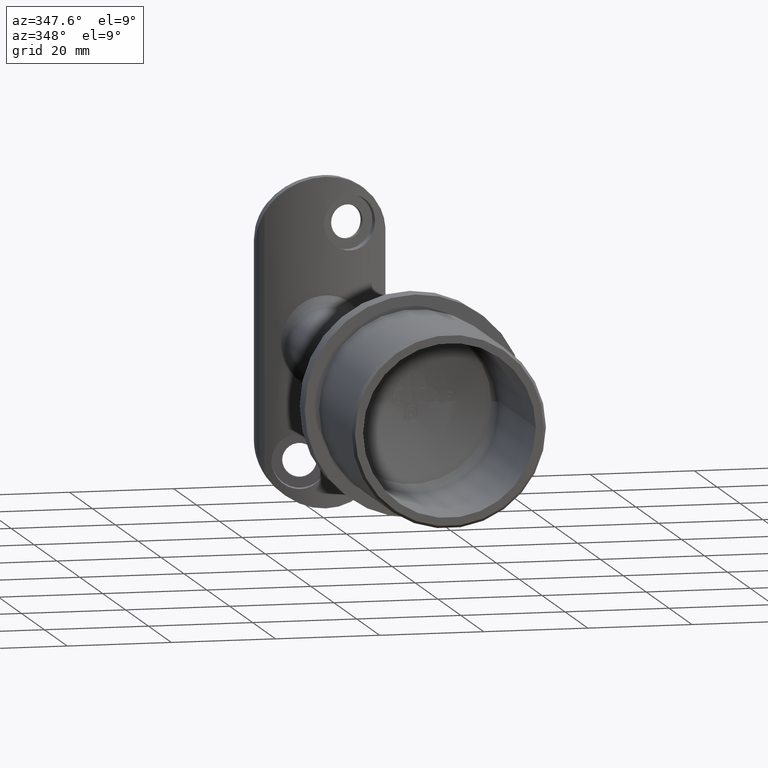
[diagram: clean part render]
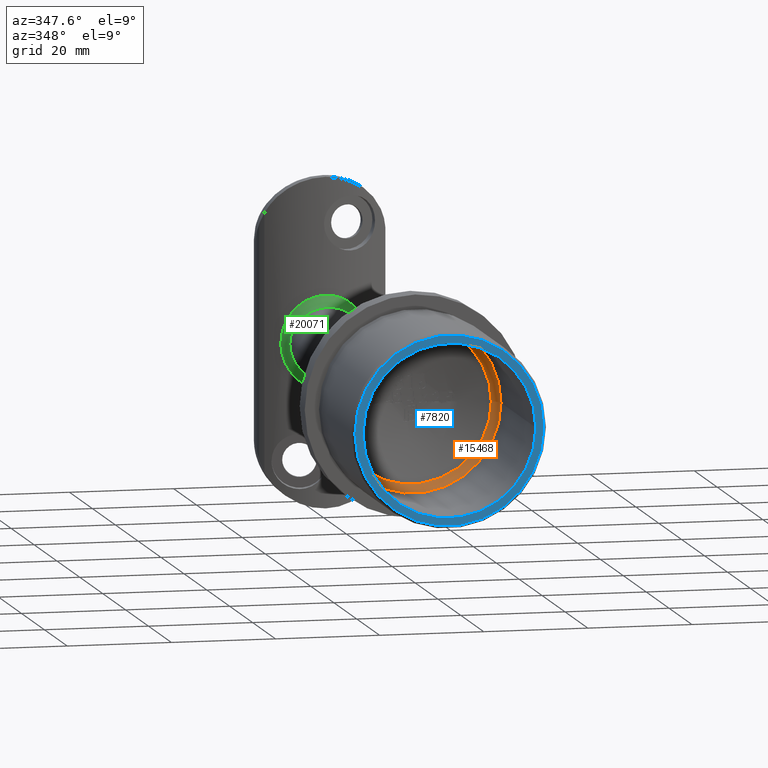
[diagram: same view with three faces highlighted in distinct colors, each labeled with its STEP entity id]
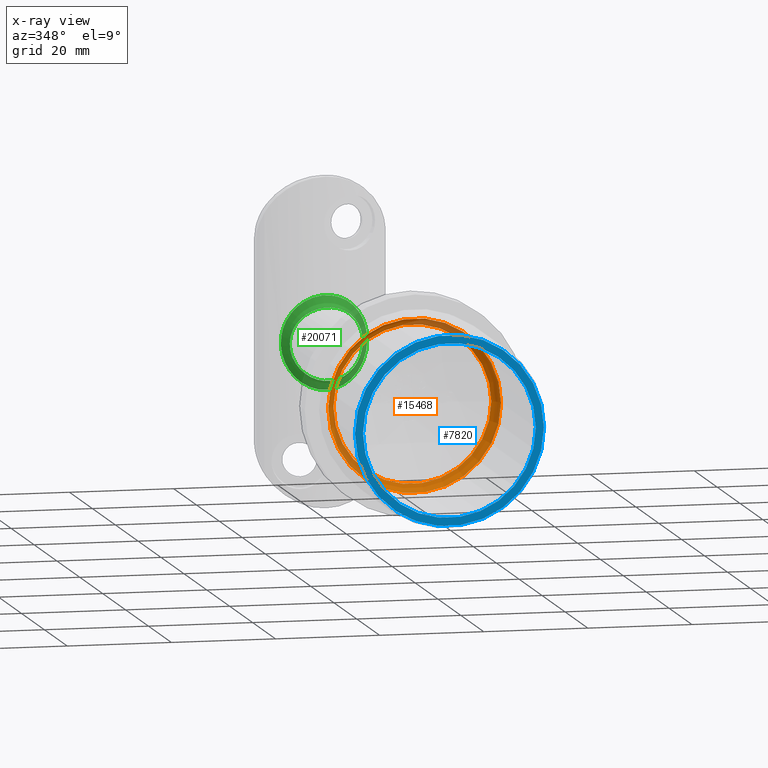
[diagram: x-ray of the same camera — body ghosted, the three highlighted faces saturated]
A machine part, auxiliary view with three faces highlighted in distinct colors.
The next image is the same camera in x-ray (body ghosted, the three faces saturated) — at least one of them is partly hidden behind the body in this view.
Their STEP definitions:

[orange] entity #15468 — the highlighted toroidal blend (fillet) surface has major radius 14.6 mm and minor (blend) radius 2 mm.
#433 = DIRECTION ( 'NONE',  ( 8.782994407763473975E-17, -1.000000000000000000, -0.000000000000000000 ) ) ;
#549 = DIRECTION ( 'NONE',  ( 1.000000000000000000, 8.817306824430313322E-17, 0.000000000000000000 ) ) ;
#2632 = DIRECTION ( 'NONE',  ( 8.782994407763473975E-17, -1.000000000000000000, -0.000000000000000000 ) ) ;
#4107 = VERTEX_POINT ( 'NONE', #24856 ) ;
#4253 = EDGE_LOOP ( 'NONE', ( #5205 ) ) ;
#5205 = ORIENTED_EDGE ( 'NONE', *, *, #11248, .T. ) ;
#5218 = TOROIDAL_SURFACE ( 'NONE', #20050, 14.59999999999999076, 2.000000000000005329 ) ;
#6573 = CARTESIAN_POINT ( 'NONE',  ( 6.865144282553196622E-15, 2.335948381283826869, 0.000000000000000000 ) ) ;
#6781 = FACE_OUTER_BOUND ( 'NONE', #18473, .T. ) ;
#8458 = CARTESIAN_POINT ( 'NONE',  ( 7.033787982718323786E-15, 0.4158321619673246428, 0.000000000000000000 ) ) ;
#10095 = DIRECTION ( 'NONE',  ( 1.000000000000000000, 8.782994407763473975E-17, 0.000000000000000000 ) ) ;
#10566 = ORIENTED_EDGE ( 'NONE', *, *, #19345, .F. ) ;
#11248 = EDGE_CURVE ( 'NONE', #22014, #22014, #15108, .T. ) ;
#12172 = FACE_OUTER_BOUND ( 'NONE', #4253, .T. ) ;
#14314 = DIRECTION ( 'NONE',  ( 8.782994407763473975E-17, -1.000000000000000000, -0.000000000000000000 ) ) ;
#15108 = CIRCLE ( 'NONE', #22667, 16.59999999999998721 ) ;
#15468 = ADVANCED_FACE ( 'NONE', ( #12172, #6781 ), #5218, .F. ) ;
#17723 = AXIS2_PLACEMENT_3D ( 'NONE', #6573, #433, #24704 ) ;
#18327 = CIRCLE ( 'NONE', #17723, 15.15960137983901213 ) ;
#18473 = EDGE_LOOP ( 'NONE', ( #10566 ) ) ;
#18634 = CARTESIAN_POINT ( 'NONE',  ( 16.59999999999999432, 0.4158321619673260860, 0.000000000000000000 ) ) ;
#19345 = EDGE_CURVE ( 'NONE', #4107, #4107, #18327, .T. ) ;
#20050 = AXIS2_PLACEMENT_3D ( 'NONE', #22084, #14314, #10095 ) ;
#22014 = VERTEX_POINT ( 'NONE', #18634 ) ;
#22084 = CARTESIAN_POINT ( 'NONE',  ( 6.938893903907228378E-15, 0.4158321619673255309, 0.000000000000000000 ) ) ;
#22667 = AXIS2_PLACEMENT_3D ( 'NONE', #8458, #2632, #549 ) ;
#24704 = DIRECTION ( 'NONE',  ( 1.000000000000000000, 8.582300908735515360E-17, 0.000000000000000000 ) ) ;
#24856 = CARTESIAN_POINT ( 'NONE',  ( 15.15960137983901923, 2.335948381283828201, 0.000000000000000000 ) ) ;

[blue] entity #7820 — the highlighted planar face has unit normal (0, -1, -0).
#957 = DIRECTION ( 'NONE',  ( 8.782994407763473975E-17, -1.000000000000000000, -0.000000000000000000 ) ) ;
#1603 = CARTESIAN_POINT ( 'NONE',  ( 18.65000000000000213, -30.00000000000000000, 0.000000000000000000 ) ) ;
#3520 = ORIENTED_EDGE ( 'NONE', *, *, #25720, .T. ) ;
#3880 = DIRECTION ( 'NONE',  ( 8.782994407763473975E-17, -1.000000000000000000, -0.000000000000000000 ) ) ;
#5064 = VERTEX_POINT ( 'NONE', #16814 ) ;
#5824 = CARTESIAN_POINT ( 'NONE',  ( 9.705208820578637362E-15, -30.00000000000000000, 0.000000000000000000 ) ) ;
#7205 = ORIENTED_EDGE ( 'NONE', *, *, #19090, .F. ) ;
#7820 = ADVANCED_FACE ( 'NONE', ( #18536, #16983 ), #25399, .T. ) ;
#11374 = DIRECTION ( 'NONE',  ( 1.000000000000000000, 8.782994407763473975E-17, 0.000000000000000000 ) ) ;
#11636 = DIRECTION ( 'NONE',  ( 8.782994407763473975E-17, -1.000000000000000000, -0.000000000000000000 ) ) ;
#12888 = EDGE_LOOP ( 'NONE', ( #3520 ) ) ;
#13272 = CIRCLE ( 'NONE', #25406, 18.14999999999996660 ) ;
#13398 = AXIS2_PLACEMENT_3D ( 'NONE', #1603, #11636, #11374 ) ;
#13578 = EDGE_LOOP ( 'NONE', ( #7205 ) ) ;
#14270 = CIRCLE ( 'NONE', #23414, 16.59999999999999076 ) ;
#14362 = DIRECTION ( 'NONE',  ( 1.000000000000000000, 0.000000000000000000, 0.000000000000000000 ) ) ;
#16814 = CARTESIAN_POINT ( 'NONE',  ( 16.60000000000000142, -30.00000000000000000, 0.000000000000000000 ) ) ;
#16983 = FACE_BOUND ( 'NONE', #13578, .T. ) ;
#18536 = FACE_OUTER_BOUND ( 'NONE', #12888, .T. ) ;
#19090 = EDGE_CURVE ( 'NONE', #5064, #5064, #14270, .T. ) ;
#23009 = CARTESIAN_POINT ( 'NONE',  ( 18.14999999999997726, -30.00000000000000000, 0.000000000000000000 ) ) ;
#23121 = DIRECTION ( 'NONE',  ( 1.000000000000000000, 0.000000000000000000, 0.000000000000000000 ) ) ;
#23217 = CARTESIAN_POINT ( 'NONE',  ( 9.705208820578637362E-15, -30.00000000000000000, 0.000000000000000000 ) ) ;
#23414 = AXIS2_PLACEMENT_3D ( 'NONE', #5824, #3880, #14362 ) ;
#24222 = VERTEX_POINT ( 'NONE', #23009 ) ;
#25399 = PLANE ( 'NONE',  #13398 ) ;
#25406 = AXIS2_PLACEMENT_3D ( 'NONE', #23217, #957, #23121 ) ;
#25720 = EDGE_CURVE ( 'NONE', #24222, #24222, #13272, .T. ) ;

[green] entity #20071 — the highlighted face is a freeform B-spline surface patch.
#43 = CARTESIAN_POINT ( 'NONE',  ( -2.101653412368404528, 78.08413575207354995, 6.683840279088475889 ) ) ;
#85 = CARTESIAN_POINT ( 'NONE',  ( 3.802219091611428237, 78.30570003820344027, -8.005637617826650398 ) ) ;
#118 = CARTESIAN_POINT ( 'NONE',  ( -1.210690757842219689, 78.02463840113763638, -6.908185126581013691 ) ) ;
#133 = CARTESIAN_POINT ( 'NONE',  ( -4.216775045227032948, 78.37297151854168931, 7.774198886259345187 ) ) ;
#142 = CARTESIAN_POINT ( 'NONE',  ( 8.299610894941643835, 79.50075544094877955, 0.5758931508844916669 ) ) ;
#185 = CARTESIAN_POINT ( 'NONE',  ( 6.625112736605236030, 77.45248135753007546, 2.271823543377680554 ) ) ;
#191 = CARTESIAN_POINT ( 'NONE',  ( -4.241644369502624912, 76.58115234373234159, -5.587214596122784371 ) ) ;
#210 = CARTESIAN_POINT ( 'NONE',  ( -5.310700114173531716, 78.60164458938174903, 6.922512103213449564 ) ) ;
#288 = CARTESIAN_POINT ( 'NONE',  ( -3.039991725999666272, 78.17929898780138842, -6.315046959347506927 ) ) ;
#320 = CARTESIAN_POINT ( 'NONE',  ( 3.050301546054268620, 78.19571104394999850, 8.375523987479736476 ) ) ;
#365 = CARTESIAN_POINT ( 'NONE',  ( 3.121341466123916053, 76.30941425459909055, 6.282089115541814373 ) ) ;
#372 = CARTESIAN_POINT ( 'NONE',  ( -0.7756697970788177798, 78.01113735914188396, -8.965523395333045542 ) ) ;
#451 = CARTESIAN_POINT ( 'NONE',  ( -3.997310700514343118, 78.31307341392586352, -5.772856937583601855 ) ) ;
#516 = CARTESIAN_POINT ( 'NONE',  ( -1.415988664491454552, 78.04071263933028035, 8.873340358176685427 ) ) ;
#532 = CARTESIAN_POINT ( 'NONE',  ( 0.4678456143316526705, 76.00015299847001415, 6.999660192207650233 ) ) ;
#537 = CARTESIAN_POINT ( 'NONE',  ( 5.580618129686531148, 77.02127435821938661, -4.231869553109254056 ) ) ;
#602 = CARTESIAN_POINT ( 'NONE',  ( 0.5673292039151320854, 77.99991532457913479, -9.000262200061706963 ) ) ;
#616 = CARTESIAN_POINT ( 'NONE',  ( -0.9343290910497682455, 76.02635964609963537, -6.941273523947947055 ) ) ;
#682 = CARTESIAN_POINT ( 'NONE',  ( -7.606639112068735997, 79.25362585738267285, 3.611449530055750756 ) ) ;
#700 = CARTESIAN_POINT ( 'NONE',  ( 6.280659865529481856, 77.30041343427602385, -3.124542953916328081 ) ) ;
#769 = CARTESIAN_POINT ( 'NONE',  ( -7.253039003550056485, 79.13675767227583435, 4.384430757921568222 ) ) ;
#972 = CARTESIAN_POINT ( 'NONE',  ( 6.816994567710239039, 77.54065869327310168, -1.606734193417209244 ) ) ;
#1148 = CARTESIAN_POINT ( 'NONE',  ( -6.738394026448194296, 78.93670565510325332, 1.916063022420509077 ) ) ;
#1235 = CARTESIAN_POINT ( 'NONE',  ( -5.664254247059277603, 77.05272405526284274, -4.119173034337529238 ) ) ;
#1310 = FACE_OUTER_BOUND ( 'NONE', #17182, .T. ) ;
#1316 = CARTESIAN_POINT ( 'NONE',  ( -8.317409861079864797, 79.50737938061995180, -0.04986249342438589527 ) ) ;
#1391 = CARTESIAN_POINT ( 'NONE',  ( -7.015011879912214532, 77.63458439154558732, -0.03878193932040584907 ) ) ;
#1427 = CARTESIAN_POINT ( 'NONE',  ( 6.785367752946281250, 77.52519413178089280, -1.781469248254315962 ) ) ;
#1480 = CARTESIAN_POINT ( 'NONE',  ( -6.667764566388047598, 78.91612667753364008, 2.149522152184955459 ) ) ;
#1609 = CARTESIAN_POINT ( 'NONE',  ( 6.268090785890923833, 78.80458480222397100, 3.132285640903113677 ) ) ;
#1688 = CARTESIAN_POINT ( 'NONE',  ( 1.311604039490847251, 78.03477522414686973, 8.891813288926963210 ) ) ;
#1726 = CARTESIAN_POINT ( 'NONE',  ( 7.265141281676739560, 79.13901495854089774, -4.389118423305885308 ) ) ;
#1776 = CARTESIAN_POINT ( 'NONE',  ( 3.075624839301632107, 76.30077508683886833, 6.304667790752713330 ) ) ;
#1820 = CARTESIAN_POINT ( 'NONE',  ( 2.243002741147612333, 78.10482546468446685, -8.670515355676185365 ) ) ;
#1871 = CARTESIAN_POINT ( 'NONE',  ( 5.241592492329480990, 76.89646852810479061, 4.662157136972977511 ) ) ;
#1888 = CARTESIAN_POINT ( 'NONE',  ( -6.385892527641441774, 78.87589322413761295, -5.756061047040668122 ) ) ;
#1965 = CARTESIAN_POINT ( 'NONE',  ( 4.416244715455865943, 76.63406572151893670, 5.435814890583769987 ) ) ;
#2042 = CARTESIAN_POINT ( 'NONE',  ( 2.437739671073543946, 78.11148416946915063, 6.579613233617324752 ) ) ;
#2115 = CARTESIAN_POINT ( 'NONE',  ( 4.990389383876507878, 76.81063029190677582, -4.929895421611089290 ) ) ;
#2132 = CARTESIAN_POINT ( 'NONE',  ( -4.245986220474963879, 78.35720619491837624, 5.577922638630172791 ) ) ;
#2199 = CARTESIAN_POINT ( 'NONE',  ( -1.832436475207981585, 76.10158605647077934, 6.771619693807892304 ) ) ;
#2204 = CARTESIAN_POINT ( 'NONE',  ( -4.537095828215979232, 78.40987800399146579, -5.343900920446438718 ) ) ;
#2221 = CARTESIAN_POINT ( 'NONE',  ( -3.488905524483705722, 78.25692211695674416, 8.171486255990613401 ) ) ;
#2285 = CARTESIAN_POINT ( 'NONE',  ( 5.685743615024269282, 77.06102111027972512, 4.089484384761236768 ) ) ;
#2290 = CARTESIAN_POINT ( 'NONE',  ( -1.590282299994028925, 78.04716698548573106, -8.853167561753348735 ) ) ;
#2357 = CARTESIAN_POINT ( 'NONE',  ( -6.633915977751629889, 77.45546184559113101, 2.280020434590144252 ) ) ;
#2363 = CARTESIAN_POINT ( 'NONE',  ( 0.2456868051332993796, 78.00032983045707624, -6.998778744953302322 ) ) ;
#2428 = CARTESIAN_POINT ( 'NONE',  ( 3.553891262183683342, 78.26655683787632256, -8.138745407537852472 ) ) ;
#2450 = CARTESIAN_POINT ( 'NONE',  ( -3.123019590841980442, 76.30959537402652870, 6.281698398697727725 ) ) ;
#2454 = CARTESIAN_POINT ( 'NONE',  ( -2.439612216207745377, 76.19057910671016032, -6.565123194931839379 ) ) ;
#2520 = CARTESIAN_POINT ( 'NONE',  ( -8.299999916841647618, 79.50090088415809930, -0.5620133852006730102 ) ) ;
#2535 = CARTESIAN_POINT ( 'NONE',  ( 7.000000000000004441, 77.62740146972080879, -5.421010862427522170E-16 ) ) ;
#2601 = CARTESIAN_POINT ( 'NONE',  ( -5.188426832542632816, 78.57392545376278292, -7.030802079928992754 ) ) ;
#2621 = CARTESIAN_POINT ( 'NONE',  ( 6.616708432757698155, 78.94179775417832445, -5.440975139607448163 ) ) ;
#2685 = CARTESIAN_POINT ( 'NONE',  ( -5.800847244432452143, 78.72006541095777266, -6.443344591409027267 ) ) ;
#2708 = CARTESIAN_POINT ( 'NONE',  ( 5.413144828980653855, 78.59202123052449451, -4.453168270106208304 ) ) ;
#2771 = CARTESIAN_POINT ( 'NONE',  ( -6.357037807528814533, 78.86523311993813934, 5.815515984017649131 ) ) ;
#2792 = CARTESIAN_POINT ( 'NONE',  ( -1.838981178174724285, 76.10240017256099065, -6.769760991785808812 ) ) ;
#2799 = CARTESIAN_POINT ( 'NONE',  ( 6.303967135223444984, 77.30964071802482351, -3.076695882493354794 ) ) ;
#2883 = CARTESIAN_POINT ( 'NONE',  ( 6.624760650298067155, 77.45232130230446899, -2.272913485465167138 ) ) ;
#3070 = CARTESIAN_POINT ( 'NONE',  ( -7.294568058675673150, 79.15014825189946635, -4.303104770456069872 ) ) ;
#3162 = CARTESIAN_POINT ( 'NONE',  ( -5.915103167364093473, 78.71254331382323244, -3.758568741459048734 ) ) ;
#3236 = CARTESIAN_POINT ( 'NONE',  ( -6.623673635354305311, 78.94148646416311976, 5.454249710981289745 ) ) ;
#3267 = CARTESIAN_POINT ( 'NONE',  ( 7.841804270887233308, 79.33469407473613444, 2.962615685471292171 ) ) ;
#3318 = CARTESIAN_POINT ( 'NONE',  ( -7.855525347580234019, 79.33922143476499400, -2.963939263134895086 ) ) ;
#3351 = CARTESIAN_POINT ( 'NONE',  ( 7.928109537423059905, 79.36525094463583230, 2.678891856587357623 ) ) ;
#3406 = CARTESIAN_POINT ( 'NONE',  ( -8.145326767812353097, 79.44315052898301133, -1.825435895336529502 ) ) ;
#3449 = CARTESIAN_POINT ( 'NONE',  ( 6.973353121971541668, 77.61458800297070582, -0.6518640596286102706 ) ) ;
#3538 = CARTESIAN_POINT ( 'NONE',  ( 6.638297989343544536, 77.45861904310051216, -2.221035750427601485 ) ) ;
#3620 = CARTESIAN_POINT ( 'NONE',  ( 7.535363578398809103, 79.22947212279730422, 3.783682952335084781 ) ) ;
#3713 = CARTESIAN_POINT ( 'NONE',  ( -1.417737576796024079, 76.06305572106478508, 6.858798299783647856 ) ) ;
#3759 = CARTESIAN_POINT ( 'NONE',  ( 8.249108966425630740, 79.48168815245111318, -1.143162671275831821 ) ) ;
#3804 = CARTESIAN_POINT ( 'NONE',  ( -3.237354744880883484, 78.22074617695494680, 8.292377300770706228 ) ) ;
#3808 = VERTEX_POINT ( 'NONE', #24767 ) ;
#3883 = CARTESIAN_POINT ( 'NONE',  ( 2.836097394960531481, 78.15296447954607117, 6.420442492335100226 ) ) ;
#3892 = CARTESIAN_POINT ( 'NONE',  ( 4.523894029968970720, 78.43462861503249428, 7.551402832713807634 ) ) ;
#3968 = CARTESIAN_POINT ( 'NONE',  ( 3.646641346628337832, 78.27736846491224298, 8.106001445499634528 ) ) ;
#3983 = CARTESIAN_POINT ( 'NONE',  ( 6.354680122403106424, 78.86459610672035581, 5.818359820397103199 ) ) ;
#4014 = CARTESIAN_POINT ( 'NONE',  ( 8.299610894941640282, 79.50075544094875113, -4.336808689942017736E-16 ) ) ;
#4060 = CARTESIAN_POINT ( 'NONE',  ( -0.6595496549940469411, 78.00743307009143734, 6.972341077665191733 ) ) ;
#4074 = CARTESIAN_POINT ( 'NONE',  ( 3.558855905870510483, 78.26732018115282585, 8.136158402946159995 ) ) ;
#4118 = CARTESIAN_POINT ( 'NONE',  ( -6.637239454447960263, 77.45696484458984798, -2.270616349485856222 ) ) ;
#4126 = CARTESIAN_POINT ( 'NONE',  ( 1.139707542448677779, 78.02117149793193107, -8.934319308662056258 ) ) ;
#4145 = CARTESIAN_POINT ( 'NONE',  ( -4.479113692273630321, 76.65241628443570221, 5.384176080354415639 ) ) ;
#4203 = CARTESIAN_POINT ( 'NONE',  ( -4.270982949477994950, 76.59244091199279580, 5.550700496509983317 ) ) ;
#4207 = CARTESIAN_POINT ( 'NONE',  ( -1.787471236280345321, 76.09678247586209920, -6.783446609200870725 ) ) ;
#4293 = CARTESIAN_POINT ( 'NONE',  ( -6.282637934759370602, 77.30126913222960638, 3.120223543712776770 ) ) ;
#4299 = CARTESIAN_POINT ( 'NONE',  ( -0.5888788276512898490, 78.00575793102878208, -6.978591905493749081 ) ) ;
#4385 = CARTESIAN_POINT ( 'NONE',  ( 4.212381176607935984, 78.37221835643400425, -7.776817275699994703 ) ) ;
#4468 = CARTESIAN_POINT ( 'NONE',  ( -7.011405159326459469, 77.63289918378825405, 0.006462420346264109369 ) ) ;
#4473 = CARTESIAN_POINT ( 'NONE',  ( 0.8656921129722061625, 78.01099439906069222, -6.959085955016709235 ) ) ;
#4529 = CARTESIAN_POINT ( 'NONE',  ( -0.5628545161822706699, 78.00495648162500117, 8.984690302055360789 ) ) ;
#4543 = CARTESIAN_POINT ( 'NONE',  ( 6.760454738103470973, 77.51431257821995757, -1.830257118604222022 ) ) ;
#4624 = CARTESIAN_POINT ( 'NONE',  ( -6.686532427139805890, 78.96080045782208856, 5.362677450132203205 ) ) ;
#4719 = CARTESIAN_POINT ( 'NONE',  ( -7.499950173599421177, 79.21762448176920657, -3.865226243709006138 ) ) ;
#4724 = CARTESIAN_POINT ( 'NONE',  ( -6.210731576984817259, 78.82744847906253938, -5.977244658829369506 ) ) ;
#4736 = CARTESIAN_POINT ( 'NONE',  ( -5.561641270581739960, 77.01249701780730561, -4.274759970584963042 ) ) ;
#4812 = CARTESIAN_POINT ( 'NONE',  ( -7.118777439910045857, 79.09390047596504303, 4.635960558111094088 ) ) ;
#4835 = CARTESIAN_POINT ( 'NONE',  ( 5.438363162760237124, 76.96866286349455777, -4.413181378281979761 ) ) ;
#4903 = CARTESIAN_POINT ( 'NONE',  ( 4.281959599899968438, 76.59165907251367855, -5.556451393466887545 ) ) ;
#5087 = CARTESIAN_POINT ( 'NONE',  ( -5.415540259607610984, 78.59074309608689646, 4.467724998801679170 ) ) ;
#5168 = CARTESIAN_POINT ( 'NONE',  ( -6.084418396629531323, 78.75593429791490507, 3.476942023003728899 ) ) ;
#5259 = CARTESIAN_POINT ( 'NONE',  ( -6.942026948240931361, 78.99723976915318246, -1.028093330039942854 ) ) ;
#5301 = CARTESIAN_POINT ( 'NONE',  ( 5.924175327428002014, 78.71398102970522359, 3.767894863863071819 ) ) ;
#5350 = CARTESIAN_POINT ( 'NONE',  ( -6.191092357250895795, 77.26329737758123883, 3.274614067082050717 ) ) ;
#5385 = CARTESIAN_POINT ( 'NONE',  ( 8.045130320363469423, 79.40650198247513458, -2.290460468080985912 ) ) ;
#5433 = CARTESIAN_POINT ( 'NONE',  ( -6.152333772937291556, 77.24720717637993062, -3.346859265972562447 ) ) ;
#5554 = CARTESIAN_POINT ( 'NONE',  ( 7.870755759460688950, 79.34510783352071428, -2.855617393406916449 ) ) ;
#5659 = CARTESIAN_POINT ( 'NONE',  ( 6.048340644395054255, 77.20318776715897968, 3.553171982481361013 ) ) ;
#5746 = CARTESIAN_POINT ( 'NONE',  ( -2.508923188805660232, 78.12091540495306674, 6.542818664859272992 ) ) ;
#5785 = CARTESIAN_POINT ( 'NONE',  ( 6.690706097083833015, 78.96204108091248486, -5.356418105814424457 ) ) ;
#5827 = CARTESIAN_POINT ( 'NONE',  ( 3.864519477301843864, 76.48368938541517537, 5.841044939098371636 ) ) ;
#5921 = CARTESIAN_POINT ( 'NONE',  ( -1.282715345871701107, 78.03055958931491887, 6.885979528899680346 ) ) ;
#6014 = CARTESIAN_POINT ( 'NONE',  ( -0.04396893971369761345, 77.99366943298457500, 9.019672857486256135 ) ) ;
#6098 = CARTESIAN_POINT ( 'NONE',  ( 1.785281386289995664, 76.10104906613403841, 6.772483249415030215 ) ) ;
#6108 = CARTESIAN_POINT ( 'NONE',  ( 3.806398248750883173, 78.30638687707809709, 8.003273095951826122 ) ) ;
#6162 = CARTESIAN_POINT ( 'NONE',  ( 7.000000000000003553, 77.62740146972079458, 0.4690455593401991474 ) ) ;
#6164 = EDGE_LOOP ( 'NONE', ( #11190 ) ) ;
#6169 = CARTESIAN_POINT ( 'NONE',  ( 4.676884006759677526, 78.46196226269381668, -7.457959369367163305 ) ) ;
#6185 = CARTESIAN_POINT ( 'NONE',  ( -4.653403082777089139, 76.70515018997566870, 5.234311158187064272 ) ) ;
#6255 = CARTESIAN_POINT ( 'NONE',  ( 5.108455626378241909, 76.85254815992202282, 4.791075873984167899 ) ) ;
#6258 = CARTESIAN_POINT ( 'NONE',  ( 0.03863578223268723105, 77.99920156390535908, -7.002969615895642264 ) ) ;
#6289 = CARTESIAN_POINT ( 'NONE',  ( 4.288304872546665258, 78.38991111357297825, 7.711376743977018222 ) ) ;
#6344 = CARTESIAN_POINT ( 'NONE',  ( -3.646839906734305803, 78.28090318944069281, -8.090063305849046316 ) ) ;
#6418 = CARTESIAN_POINT ( 'NONE',  ( -4.759076562873127969, 76.73798806326074384, -5.138415976137677532 ) ) ;
#6498 = CARTESIAN_POINT ( 'NONE',  ( -6.909293853268355434, 77.58404006155156196, -1.147128244499468819 ) ) ;
#6506 = CARTESIAN_POINT ( 'NONE',  ( 3.245693999696301901, 78.21819806643300410, -8.304015258666535004 ) ) ;
#6572 = CARTESIAN_POINT ( 'NONE',  ( -0.2761863426521263820, 77.99990435500588148, 9.000296167785595713 ) ) ;
#6588 = CARTESIAN_POINT ( 'NONE',  ( -2.277415669343598292, 76.16136093738539614, -6.635275958059506429 ) ) ;
#6651 = CARTESIAN_POINT ( 'NONE',  ( -4.297001999382179527, 78.38831282360052910, 7.722589507129494990 ) ) ;
#6667 = CARTESIAN_POINT ( 'NONE',  ( -6.285878089318551964, 77.30264804192191264, -3.113901544438758773 ) ) ;
#6672 = CARTESIAN_POINT ( 'NONE',  ( 5.700836557025065865, 78.65960036432107927, -4.077161108953586854 ) ) ;
#6725 = CARTESIAN_POINT ( 'NONE',  ( -7.899705495589858906, 79.35436651134280339, 2.818199012299480444 ) ) ;
#6812 = CARTESIAN_POINT ( 'NONE',  ( -3.815625136762492708, 78.30333454409962712, 8.015852038456181106 ) ) ;
#6835 = CARTESIAN_POINT ( 'NONE',  ( 4.630293067518071126, 76.69543525248882077, -5.269148865467068177 ) ) ;
#6921 = CARTESIAN_POINT ( 'NONE',  ( -3.129844580277665322, 76.31097438144148271, -6.278342303019225135 ) ) ;
#7104 = CARTESIAN_POINT ( 'NONE',  ( -7.955044366967578995, 79.37477786205501218, 2.582959097875885845 ) ) ;
#7195 = CARTESIAN_POINT ( 'NONE',  ( -6.874000118534735471, 77.56735236392057686, 1.341932192340917984 ) ) ;
#7284 = CARTESIAN_POINT ( 'NONE',  ( -6.096157984449109613, 78.79672282126905714, 6.114303800085250096 ) ) ;
#7365 = CARTESIAN_POINT ( 'NONE',  ( -7.464150764319380293, 79.20577693845675071, 3.946217463890008048 ) ) ;
#7399 = CARTESIAN_POINT ( 'NONE',  ( 7.004258624710820946, 79.01616900564492596, 0.04334421034656672778 ) ) ;
#7456 = CARTESIAN_POINT ( 'NONE',  ( -4.941060241808074238, 78.48947047437562219, 4.972608185943620640 ) ) ;
#7502 = CARTESIAN_POINT ( 'NONE',  ( 6.940705855103700195, 78.99683937496905628, 1.038080844228019828 ) ) ;
#7761 = CARTESIAN_POINT ( 'NONE',  ( 3.154406399701254582, 78.20513665288760308, 8.345470105226095114 ) ) ;
#7859 = CARTESIAN_POINT ( 'NONE',  ( 1.333212309766834025, 76.05557112003545228, 6.875776605513509665 ) ) ;
#7941 = CARTESIAN_POINT ( 'NONE',  ( -2.083326919774716846, 76.13837595611244069, 6.686720697284966874 ) ) ;
#7956 = CARTESIAN_POINT ( 'NONE',  ( 5.611114875921335177, 78.67060529938979130, 6.657002622576819739 ) ) ;
#8020 = CARTESIAN_POINT ( 'NONE',  ( 3.997811522027176157, 78.31531960104905465, 5.758253788228900660 ) ) ;
#8034 = CARTESIAN_POINT ( 'NONE',  ( 7.890443645701357589, 79.35191033684749584, 2.805638557237491781 ) ) ;
#8064 = CARTESIAN_POINT ( 'NONE',  ( 8.038252097190369483, 79.40464709066702653, -2.259083416125384325 ) ) ;
#8092 = CARTESIAN_POINT ( 'NONE',  ( 4.661897919865956474, 76.70426962734543963, -5.241517873902071578 ) ) ;
#8112 = CARTESIAN_POINT ( 'NONE',  ( 3.425454844678861743, 78.22920486489137204, 6.115223950262642205 ) ) ;
#8179 = CARTESIAN_POINT ( 'NONE',  ( 2.276047629734963440, 76.16556105805551624, 6.623648275820114506 ) ) ;
#8182 = CARTESIAN_POINT ( 'NONE',  ( 2.739722918732880430, 78.15286746416066421, -8.516415590669339508 ) ) ;
#8197 = CARTESIAN_POINT ( 'NONE',  ( -5.517347846258377153, 78.65027468849527281, 6.729828631773055569 ) ) ;
#8208 = CARTESIAN_POINT ( 'NONE',  ( 1.139633726736358765, 78.02081980098952840, 8.936113572537976779 ) ) ;
#8246 = FACE_OUTER_BOUND ( 'NONE', #6164, .T. ) ;
#8265 = CARTESIAN_POINT ( 'NONE',  ( 0.9612441954309806080, 76.02295812210347492, -6.948915017743953371 ) ) ;
#8335 = CARTESIAN_POINT ( 'NONE',  ( -4.089363197435215369, 76.54236294247650108, 5.685799595867919720 ) ) ;
#8338 = B_SPLINE_CURVE_WITH_KNOTS ( 'NONE', 3,
 ( #18432, #6162, #12415, #24236, #12597, #185, #20175, #24313, #18189, #2285, #18270, #20344, #6255, #22447, #12249, #20424, #365, #8435, #8179, #14430, #14262, #20501, #532, #24565, #22286, #2199, #10465, #2450, #16269, #8335, #4203, #8528, #14344, #16358, #22539, #24484, #4293, #2357, #12501, #16438, #16510, #10540, #4468, #18522, #14594, #6498, #16188, #4118, #6667, #8953, #4736, #8785, #20769, #22626, #18843, #20852, #22894, #6921, #6588, #2792, #16870, #616, #20591, #8610, #22974, #24988, #20945, #13021, #16607, #12935, #8686, #18668, #4903, #6835, #22795, #14939, #8872, #700, #18763, #2883, #4543, #972, #20682, #24723, #2535 ),
 .UNSPECIFIED., .T., .F.,
 ( 4, 2, 2, 2, 2, 2, 2, 2, 2, 2, 2, 2, 2, 2, 2, 2, 2, 2, 2, 2, 2, 1, 2, 2, 2, 2, 2, 2, 2, 2, 2, 2, 2, 2, 2, 2, 2, 2, 2, 2, 2, 2, 4 ),
 ( 0.000000000000000000, 0.001407080823449828296, 0.002110621235174742552, 0.002814161646899656158, 0.004221242470349485104, 0.004924782882074394373, 0.005628323293799303642, 0.007035404117249133456, 0.008442484940698961535, 0.009146025352423878610, 0.009849565764148792216, 0.01125664658759861943, 0.01266372741104845011, 0.01407080823449827905, 0.01547788905794810627, 0.01618142946967301987, 0.01688496988139793348, 0.01829205070484776069, 0.01969913152829758096, 0.02110621235174740817, 0.02180975276347231484, 0.02251329317519722498, 0.02321683358692213511, 0.02392037399864704178, 0.02532745482209685858, 0.02673453564554668233, 0.02814161646899649913, 0.02884515688072140580, 0.02954869729244631593, 0.03095577811589613274, 0.03236285893934594954, 0.03306639935107086314, 0.03376993976279576981, 0.03517702058624559008, 0.03588056099797049675, 0.03658410140969541036, 0.03799118223314522369, 0.03939826305659504396, 0.04080534388004486424, 0.04221242470349468451, 0.04291596511521959117, 0.04361950552694449784, 0.04502658635039431811 ),
 .UNSPECIFIED. ) ;
#8343 = CARTESIAN_POINT ( 'NONE',  ( -2.436790047034818940, 78.11389146877775147, -6.570003479042411776 ) ) ;
#8435 = CARTESIAN_POINT ( 'NONE',  ( 2.491108228721807372, 76.19890118318846817, 6.545703464390432380 ) ) ;
#8439 = CARTESIAN_POINT ( 'NONE',  ( -4.590703491222765109, 78.44400121929398040, -7.520681659823840626 ) ) ;
#8528 = CARTESIAN_POINT ( 'NONE',  ( -4.621774035445382012, 76.69534445215514040, 5.262202592258383937 ) ) ;
#8595 = CARTESIAN_POINT ( 'NONE',  ( -7.122124465000027271, 79.09495573943958391, -4.629914628936107057 ) ) ;
#8610 = CARTESIAN_POINT ( 'NONE',  ( -0.2356517015038245288, 76.00005049287632630, -6.999887855933749847 ) ) ;
#8669 = CARTESIAN_POINT ( 'NONE',  ( -5.601996027529431821, 78.67061144054592603, -6.647152211640520392 ) ) ;
#8686 = CARTESIAN_POINT ( 'NONE',  ( 3.119165314198483863, 76.30893126706972396, -6.283278256244856586 ) ) ;
#8692 = CARTESIAN_POINT ( 'NONE',  ( 6.929294502860483540, 79.03501648713421446, -4.962370028530553867 ) ) ;
#8763 = CARTESIAN_POINT ( 'NONE',  ( -7.497033864093349820, 79.21665144229494615, 3.871852960723800141 ) ) ;
#8785 = CARTESIAN_POINT ( 'NONE',  ( -5.275559208904717856, 76.90758209131271883, -4.623273402837947188 ) ) ;
#8789 = CARTESIAN_POINT ( 'NONE',  ( 6.491228225740806934, 77.39204395442013151, -2.660602252600887674 ) ) ;
#8872 = CARTESIAN_POINT ( 'NONE',  ( 6.065726975229734919, 77.20951045943708380, -3.523146886028037716 ) ) ;
#8953 = CARTESIAN_POINT ( 'NONE',  ( -6.066461002388448875, 77.20981469468152625, -3.521857086148408644 ) ) ;
#9151 = CARTESIAN_POINT ( 'NONE',  ( -6.200975096735278136, 78.78668856738926252, 3.263859814726234099 ) ) ;
#9227 = CARTESIAN_POINT ( 'NONE',  ( -7.159726366601503855, 79.10683268562331705, -4.561524688983394249 ) ) ;
#9307 = CARTESIAN_POINT ( 'NONE',  ( -8.239762397709696984, 79.47843316995377450, -1.230547343832410156 ) ) ;
#9338 = CARTESIAN_POINT ( 'NONE',  ( 8.268016792091042788, 79.48893913122086019, -0.8381109337973918771 ) ) ;
#9392 = CARTESIAN_POINT ( 'NONE',  ( -6.295362037069140548, 77.30753026684362794, 3.069280249733635557 ) ) ;
#9481 = CARTESIAN_POINT ( 'NONE',  ( -6.855491762085865304, 78.97123607274970425, 1.439350247807183791 ) ) ;
#9521 = CARTESIAN_POINT ( 'NONE',  ( 6.686670913235632341, 77.48046199499096076, 2.083582555150898852 ) ) ;
#9602 = CARTESIAN_POINT ( 'NONE',  ( 6.753177752251174226, 78.94043702465597789, -1.910950429464631339 ) ) ;
#9705 = CARTESIAN_POINT ( 'NONE',  ( 6.969366189672623335, 79.00552516847885443, -0.7002594449962068479 ) ) ;
#9798 = CARTESIAN_POINT ( 'NONE',  ( 4.929491940805573513, 76.78965902415977496, 4.990522302471876337 ) ) ;
#9876 = CARTESIAN_POINT ( 'NONE',  ( 1.827843948512407835, 78.06323580736527390, 6.763103925984833786 ) ) ;
#9950 = CARTESIAN_POINT ( 'NONE',  ( 5.044343911821775883, 78.50937416679779801, 4.885503047250707276 ) ) ;
#10055 = CARTESIAN_POINT ( 'NONE',  ( 1.620830746200079497, 78.04942925573084267, 6.815125347590397453 ) ) ;
#10099 = CARTESIAN_POINT ( 'NONE',  ( 5.609176547722484862, 78.67011981651363328, -6.659018529076866422 ) ) ;
#10133 = CARTESIAN_POINT ( 'NONE',  ( 1.416433077510347971, 76.05810270425045871, -6.870873695962411709 ) ) ;
#10147 = CARTESIAN_POINT ( 'NONE',  ( -3.556483031483663737, 76.40444590769541833, 6.046599133415861083 ) ) ;
#10212 = CARTESIAN_POINT ( 'NONE',  ( -3.871859156412801095, 76.48146967604482427, -5.849419068547111245 ) ) ;
#10225 = CARTESIAN_POINT ( 'NONE',  ( -5.910200098425977266, 78.74786504507697771, 6.325471609833356545 ) ) ;
#10298 = CARTESIAN_POINT ( 'NONE',  ( 2.106863723543472400, 78.08200193103793652, -6.692169525723826062 ) ) ;
#10332 = CARTESIAN_POINT ( 'NONE',  ( 8.038914373757648946, 79.40488689847734349, 2.256226618026182962 ) ) ;
#10391 = CARTESIAN_POINT ( 'NONE',  ( -2.892547446962355995, 78.17574804794458032, -8.440872679088316843 ) ) ;
#10465 = CARTESIAN_POINT ( 'NONE',  ( -2.271278073965218969, 76.16046760381303216, 6.637339982832675567 ) ) ;
#10469 = CARTESIAN_POINT ( 'NONE',  ( -0.4988982658859155150, 78.00365775878573515, -8.988670538434471169 ) ) ;
#10540 = CARTESIAN_POINT ( 'NONE',  ( -6.988142717506440782, 77.62168642522371442, 0.4690752374194562813 ) ) ;
#10611 = CARTESIAN_POINT ( 'NONE',  ( -8.198178853411208777, 79.46303269113606405, 1.431589994768301954 ) ) ;
#10702 = CARTESIAN_POINT ( 'NONE',  ( -8.250878647102910080, 79.48234170436795409, -1.131110549061010273 ) ) ;
#10726 = CARTESIAN_POINT ( 'NONE',  ( 6.419946162256480626, 78.84561493241064056, -2.840026497927998328 ) ) ;
#10786 = CARTESIAN_POINT ( 'NONE',  ( 1.130812610261867190, 78.02042531800378811, -8.937329684039601929 ) ) ;
#10803 = CARTESIAN_POINT ( 'NONE',  ( 6.448042593543390488, 78.89328053973137855, -5.674090343368029643 ) ) ;
#11155 = CARTESIAN_POINT ( 'NONE',  ( -6.869874756727884169, 77.56493538341977967, -1.419783474229644238 ) ) ;
#11190 = ORIENTED_EDGE ( 'NONE', *, *, #22619, .F. ) ;
#11249 = CARTESIAN_POINT ( 'NONE',  ( -5.794830560997384694, 77.10310954100870617, -3.933441907707378338 ) ) ;
#11293 = CARTESIAN_POINT ( 'NONE',  ( 7.003710878888145253, 77.62918422475554792, 0.04042710581091685934 ) ) ;
#11345 = CARTESIAN_POINT ( 'NONE',  ( -7.685299794372649096, 79.28037054620283186, 3.410723999211461077 ) ) ;
#11380 = CARTESIAN_POINT ( 'NONE',  ( 5.804672273469771326, 77.10460914773483410, 3.939007593681958408 ) ) ;
#11428 = CARTESIAN_POINT ( 'NONE',  ( -8.150218039114083268, 79.44537941744108878, 1.725341390099558447 ) ) ;
#11509 = CARTESIAN_POINT ( 'NONE',  ( -6.625452461083303213, 77.45223590216350829, -2.305286093470352515 ) ) ;
#11529 = B_SPLINE_CURVE_WITH_KNOTS ( 'NONE', 3,
 ( #4014, #19892, #3759, #21914, #8064, #25977, #13982, #24131, #1726, #5785, #19809, #10099, #11863, #21824, #12134, #85, #2428, #20488, #13897, #1820, #20836, #10786, #602, #24803, #22695, #12662, #14840, #14752, #20665, #20572, #22772, #14656, #2601, #8669, #2685, #16765, #20753, #8595, #12825, #4719, #18586, #24703, #14578, #10702, #2520, #18739, #12740, #16678, #10611, #22610, #6725, #682, #8763, #769, #4812, #4624, #2771, #24623, #16850, #18827, #18654, #6651, #6812, #24554, #12581, #516, #16586, #4529, #6572, #12365, #8208, #19945, #12193, #24012, #320, #4074, #6108, #6289, #3892, #14377, #7956, #3983, #20129, #26046, #22323, #22065, #8034, #10332, #22232, #14130, #142, #18224 ),
 .UNSPECIFIED., .T., .F.,
 ( 4, 2, 2, 2, 2, 2, 2, 2, 2, 2, 2, 2, 2, 2, 2, 2, 2, 2, 2, 2, 2, 2, 2, 2, 2, 2, 2, 2, 2, 2, 2, 2, 2, 2, 2, 2, 2, 2, 2, 2, 2, 2, 2, 2, 2, 4 ),
 ( 0.000000000000000000, 0.001706043475492909339, 0.002559065213239366393, 0.003412086950985823448, 0.005118130426478737990, 0.006824173901971652967, 0.008530217377464567943, 0.009383239115211026299, 0.01023626085295748465, 0.01108928259070394128, 0.01194230432845039790, 0.01364834780394331808, 0.01450136954168977470, 0.01535439127943623305, 0.01706043475492914976, 0.01876647823042206301, 0.01961949996816851963, 0.02047252170591497625, 0.02217856518140788949, 0.02303158691915434958, 0.02388460865690080620, 0.02559065213239372291, 0.02729669560788663615, 0.02814971734563309277, 0.02900273908337955286, 0.03070878255887246611, 0.03156180429661892273, 0.03241482603436536547, 0.03412086950985826483, 0.03497389124760470064, 0.03582691298535114338, 0.03753295646084404275, 0.03923899993633694211, 0.04009202167408338485, 0.04094504341182984147, 0.04265108688732273390, 0.04350410862506918358, 0.04435713036281562632, 0.04521015210056208294, 0.04606317383830853263, 0.04776921731380142505, 0.04947526078929432441, 0.05118130426478721684, 0.05203432600253366652, 0.05288734774028012314, 0.05459339121577301557 ),
 .UNSPECIFIED. ) ;
#11547 = CARTESIAN_POINT ( 'NONE',  ( 6.355423852708430132, 77.33322504430687161, 2.942864518518931494 ) ) ;
#11640 = CARTESIAN_POINT ( 'NONE',  ( 8.165555914473349830, 79.45097748279147254, -1.715564329735435933 ) ) ;
#11732 = CARTESIAN_POINT ( 'NONE',  ( 0.3779890306760864127, 77.99942601071376203, 7.002202612316560604 ) ) ;
#11817 = CARTESIAN_POINT ( 'NONE',  ( -0.8687884943837811402, 78.01352437039527388, 6.949663670424096829 ) ) ;
#11863 = CARTESIAN_POINT ( 'NONE',  ( 5.198905008095597857, 78.57266275423889113, -7.040833939030155086 ) ) ;
#11919 = CARTESIAN_POINT ( 'NONE',  ( -0.7321550753715239113, 76.01551699030216014, 6.965479536270777317 ) ) ;
#12011 = CARTESIAN_POINT ( 'NONE',  ( -0.03206874468572221137, 77.99668677238736336, 7.012337751321488177 ) ) ;
#12101 = CARTESIAN_POINT ( 'NONE',  ( 4.711448128369838173, 78.44115825610818149, 5.205267021146616102 ) ) ;
#12116 = CARTESIAN_POINT ( 'NONE',  ( -5.238211958246547617, 76.89727535460859542, -4.648968067890572264 ) ) ;
#12134 = CARTESIAN_POINT ( 'NONE',  ( 4.285498773055152810, 78.38938780320705746, -7.713240877391364769 ) ) ;
#12164 = CARTESIAN_POINT ( 'NONE',  ( 3.303825758868144558, 78.21027492136330750, -6.192836007863566472 ) ) ;
#12178 = CARTESIAN_POINT ( 'NONE',  ( -3.307438521478700100, 78.21072710074828649, 6.191039491185877708 ) ) ;
#12193 = CARTESIAN_POINT ( 'NONE',  ( 2.253077927774043587, 78.10579851107786453, 8.667400836764837635 ) ) ;
#12242 = ORIENTED_EDGE ( 'NONE', *, *, #17419, .F. ) ;
#12249 = CARTESIAN_POINT ( 'NONE',  ( 4.282533811373445687, 76.59181525561405124, 5.556032025209497682 ) ) ;
#12254 = CARTESIAN_POINT ( 'NONE',  ( 0.2733338361944016581, 76.00071069899871645, -6.998438482673158489 ) ) ;
#12273 = CARTESIAN_POINT ( 'NONE',  ( -4.774476993893292054, 78.45569896471825189, 5.132817950202031021 ) ) ;
#12336 = CARTESIAN_POINT ( 'NONE',  ( 3.552777185599882426, 76.40362918776335732, -6.048635658925292979 ) ) ;
#12365 = CARTESIAN_POINT ( 'NONE',  ( 0.5766396741280824800, 78.00019543124525967, 8.999394840896279391 ) ) ;
#12415 = CARTESIAN_POINT ( 'NONE',  ( 6.953071056674836825, 77.60460873617509492, 0.9308113181574226846 ) ) ;
#12421 = CARTESIAN_POINT ( 'NONE',  ( -0.6542100164020001607, 76.01207722082810392, -6.973184863229038299 ) ) ;
#12501 = CARTESIAN_POINT ( 'NONE',  ( -6.768521851265066225, 77.51789297065747064, 1.844108511642954751 ) ) ;
#12507 = CARTESIAN_POINT ( 'NONE',  ( -5.839671685408516666, 78.72991000440066500, -6.401983124737459896 ) ) ;
#12581 = CARTESIAN_POINT ( 'NONE',  ( -2.245802310297251747, 78.10012751657529861, 8.685890739260086590 ) ) ;
#12597 = CARTESIAN_POINT ( 'NONE',  ( 6.760408310034657475, 77.51429216347600004, 1.830349820823439444 ) ) ;
#12662 = CARTESIAN_POINT ( 'NONE',  ( -1.147105885807113923, 78.02606654045605694, -8.919014876885649201 ) ) ;
#12740 = CARTESIAN_POINT ( 'NONE',  ( -8.286817360752037231, 79.49596020606479385, 0.5757122247186677866 ) ) ;
#12825 = CARTESIAN_POINT ( 'NONE',  ( -7.256096066878143347, 79.13774099480616542, -4.378496679310524442 ) ) ;
#12850 = CARTESIAN_POINT ( 'NONE',  ( 7.870755759460688950, 79.34510783352071428, -2.855617393406916449 ) ) ;
#12935 = CARTESIAN_POINT ( 'NONE',  ( 2.486717225875003656, 76.19818256761240605, -6.547398866283553609 ) ) ;
#13021 = CARTESIAN_POINT ( 'NONE',  ( 1.828396394820210213, 76.10614298020375657, -6.760953552168449399 ) ) ;
#13211 = CARTESIAN_POINT ( 'NONE',  ( -6.503805604377130400, 78.86948329008586711, 2.605776711763621911 ) ) ;
#13301 = CARTESIAN_POINT ( 'NONE',  ( -6.870691265722449259, 79.01726444030275331, -5.057282452879020340 ) ) ;
#13373 = CARTESIAN_POINT ( 'NONE',  ( -5.503964632225230247, 78.61289353307684280, -4.339850134050922570 ) ) ;
#13409 = CARTESIAN_POINT ( 'NONE',  ( 5.653857723004763969, 78.64663357755935635, 4.162128569475403772 ) ) ;
#13456 = CARTESIAN_POINT ( 'NONE',  ( -7.002950950522989437, 79.01565937804556938, 0.4541683197297653463 ) ) ;
#13545 = CARTESIAN_POINT ( 'NONE',  ( -6.564653333959740600, 77.42528895635629738, 2.440731130805258164 ) ) ;
#13585 = CARTESIAN_POINT ( 'NONE',  ( 6.587446062483691911, 78.89327755344451987, -2.373023508284721750 ) ) ;
#13662 = CARTESIAN_POINT ( 'NONE',  ( 6.559370677327473587, 78.88509539958572248, 2.462002309770408015 ) ) ;
#13759 = CARTESIAN_POINT ( 'NONE',  ( 2.381434186836110189, 78.11852438730223014, 8.626590321367336500 ) ) ;
#13857 = CARTESIAN_POINT ( 'NONE',  ( -2.470114685860667070, 78.12760739935320942, 8.597212325095298979 ) ) ;
#13897 = CARTESIAN_POINT ( 'NONE',  ( 2.781514605574907595, 78.16223249439806864, -8.485053734638221101 ) ) ;
#13948 = CARTESIAN_POINT ( 'NONE',  ( 4.237587234859792495, 76.58295955554299894, 5.576304439139361691 ) ) ;
#13982 = CARTESIAN_POINT ( 'NONE',  ( 7.801850734242002261, 79.32072510892405148, -3.083275351157985789 ) ) ;
#14019 = CARTESIAN_POINT ( 'NONE',  ( 5.844695002601230982, 78.72820696058145984, 6.416385817588241558 ) ) ;
#14116 = CARTESIAN_POINT ( 'NONE',  ( 6.882360176930388818, 79.01864734682280300, 5.064438334372662887 ) ) ;
#14130 = CARTESIAN_POINT ( 'NONE',  ( 8.249163509629656943, 79.48170979819686011, 1.142221034232270727 ) ) ;
#14183 = CARTESIAN_POINT ( 'NONE',  ( 5.527419823888957140, 78.64946265303930772, -6.739094409560258292 ) ) ;
#14201 = CARTESIAN_POINT ( 'NONE',  ( -4.671777084150060766, 78.46092229911677407, 7.461771449390378841 ) ) ;
#14262 = CARTESIAN_POINT ( 'NONE',  ( 1.608518554843038739, 76.08167026762393448, 6.816629614133127291 ) ) ;
#14268 = CARTESIAN_POINT ( 'NONE',  ( -3.075792307574161555, 76.30460809962758617, -6.292271459859343885 ) ) ;
#14284 = CARTESIAN_POINT ( 'NONE',  ( -2.712603859592742861, 78.14189383964864533, 6.461696161075172640 ) ) ;
#14344 = CARTESIAN_POINT ( 'NONE',  ( -4.791351588514541682, 76.74833207588868333, 5.108253091683089053 ) ) ;
#14351 = CARTESIAN_POINT ( 'NONE',  ( -2.232443134109068250, 78.09521554106595431, -6.641489040323796722 ) ) ;
#14377 = CARTESIAN_POINT ( 'NONE',  ( 5.201318025730705230, 78.57320207433349424, 7.038766605539418464 ) ) ;
#14430 = CARTESIAN_POINT ( 'NONE',  ( 1.835462797746157282, 76.10699233267882846, 6.759007738765117956 ) ) ;
#14434 = CARTESIAN_POINT ( 'NONE',  ( -0.3786979397112156254, 78.00189545086152521, -6.992950686496651080 ) ) ;
#14521 = VERTEX_POINT ( 'NONE', #19053 ) ;
#14522 = CARTESIAN_POINT ( 'NONE',  ( -3.279547302963870425, 76.34695157980196711, -6.188401948747954684 ) ) ;
#14578 = CARTESIAN_POINT ( 'NONE',  ( -8.050904094966709224, 79.40909867581993353, -2.261143327159260252 ) ) ;
#14594 = CARTESIAN_POINT ( 'NONE',  ( -6.943687215562234449, 77.60043643652059586, -0.9158733931352632807 ) ) ;
#14656 = CARTESIAN_POINT ( 'NONE',  ( -4.973396842642290316, 78.52658182543106591, -7.211227716530417275 ) ) ;
#14678 = CARTESIAN_POINT ( 'NONE',  ( 5.259022835802016793, 78.55732944907184390, -4.634335755611848739 ) ) ;
#14752 = CARTESIAN_POINT ( 'NONE',  ( -2.254056669537370716, 78.10095772353858479, -8.683242496905718255 ) ) ;
#14757 = CARTESIAN_POINT ( 'NONE',  ( -5.044027087474995952, 78.51088951886052314, -4.867831737119357349 ) ) ;
#14840 = CARTESIAN_POINT ( 'NONE',  ( -1.427026492804247537, 78.04138661400970989, -8.871228122942458327 ) ) ;
#14862 = CARTESIAN_POINT ( 'NONE',  ( 5.844257295150371512, 77.12235965029252327, -3.859621133220303424 ) ) ;
#14939 = CARTESIAN_POINT ( 'NONE',  ( 5.560503778093371707, 77.01206980096712584, -4.276260685735618239 ) ) ;
#15202 = CARTESIAN_POINT ( 'NONE',  ( -6.038606532556667794, 77.20023628752716149, -3.547852535963390341 ) ) ;
#15281 = CARTESIAN_POINT ( 'NONE',  ( -6.715872322851336840, 78.97080000453792081, -5.296079615563211718 ) ) ;
#15315 = CARTESIAN_POINT ( 'NONE',  ( 6.613879926817205934, 77.44732648590117208, 2.304256644338114057 ) ) ;
#15372 = CARTESIAN_POINT ( 'NONE',  ( -5.202698048531945396, 78.54501967292442544, -4.697738986054741162 ) ) ;
#15411 = CARTESIAN_POINT ( 'NONE',  ( 6.998180576528538310, 79.01430722097754256, 0.2951805640732218516 ) ) ;
#15464 = CARTESIAN_POINT ( 'NONE',  ( -6.850009339161136523, 78.96921551851377785, -1.525028345377995587 ) ) ;
#15686 = CARTESIAN_POINT ( 'NONE',  ( 8.289030482352385931, 79.49680118542008245, -0.5431317465604086347 ) ) ;
#15780 = CARTESIAN_POINT ( 'NONE',  ( -1.897757214835843476, 78.06829881613890620, 6.743875899265718843 ) ) ;
#15852 = CARTESIAN_POINT ( 'NONE',  ( 2.116734406256176371, 78.09318532561150050, 8.707478463277832148 ) ) ;
#15949 = CARTESIAN_POINT ( 'NONE',  ( 3.670086680825944470, 76.43557919745499873, 5.965110206961393047 ) ) ;
#16042 = CARTESIAN_POINT ( 'NONE',  ( 4.181228374983206209, 78.34605094678745729, 5.626741718912342094 ) ) ;
#16097 = CARTESIAN_POINT ( 'NONE',  ( -4.925255209613561114, 76.79150578568692254, -4.979320208216962307 ) ) ;
#16130 = CARTESIAN_POINT ( 'NONE',  ( 1.580734773115261671, 78.05124651922183432, 8.840284207344575762 ) ) ;
#16188 = CARTESIAN_POINT ( 'NONE',  ( -6.771997069517274426, 77.51950363056192828, -1.832221256019727074 ) ) ;
#16193 = CARTESIAN_POINT ( 'NONE',  ( 4.776796075736890579, 78.45442371121285419, -5.147267104250538239 ) ) ;
#16205 = CARTESIAN_POINT ( 'NONE',  ( -3.691181194539877808, 78.26511235379398101, 5.972492768284074494 ) ) ;
#16269 = CARTESIAN_POINT ( 'NONE',  ( -3.525707602514895012, 76.39814045989028557, 6.064175089919991990 ) ) ;
#16276 = CARTESIAN_POINT ( 'NONE',  ( -2.841486899221464135, 78.15606035987248390, -6.406278320130514459 ) ) ;
#16358 = CARTESIAN_POINT ( 'NONE',  ( -5.271653149529698545, 76.90622146688761518, 4.627620538122814153 ) ) ;
#16361 = CARTESIAN_POINT ( 'NONE',  ( -1.341264818381580071, 76.05114732150313728, -6.885796992090376989 ) ) ;
#16438 = CARTESIAN_POINT ( 'NONE',  ( -6.906302118605291085, 77.58262293958310352, 1.164644628197697207 ) ) ;
#16444 = CARTESIAN_POINT ( 'NONE',  ( 0.3240806406877229651, 78.00065539162530115, -8.997992334798430747 ) ) ;
#16510 = CARTESIAN_POINT ( 'NONE',  ( -6.941544617961584507, 77.59941499906588547, 0.9322768466050601610 ) ) ;
#16516 = CARTESIAN_POINT ( 'NONE',  ( -0.4207772997369252366, 76.00396643048586043, -6.991188196755591555 ) ) ;
#16586 = CARTESIAN_POINT ( 'NONE',  ( -1.134824771922153142, 78.02545533107124243, 8.920921319278402706 ) ) ;
#16607 = CARTESIAN_POINT ( 'NONE',  ( 2.270832099654655156, 76.16478018803134376, -6.625469635154083825 ) ) ;
#16678 = CARTESIAN_POINT ( 'NONE',  ( -8.236338624643735784, 79.47718624473216664, 1.145523144945731042 ) ) ;
#16765 = CARTESIAN_POINT ( 'NONE',  ( -6.360865453917353030, 78.86629069649971768, -5.810701256921472435 ) ) ;
#16850 = CARTESIAN_POINT ( 'NONE',  ( -5.599274629813362658, 78.66994383316219341, 6.649881114854676589 ) ) ;
#16870 = CARTESIAN_POINT ( 'NONE',  ( -1.162820567632431468, 76.04187863968829220, -6.906571308716607405 ) ) ;
#17137 = CARTESIAN_POINT ( 'NONE',  ( -6.771352096255172093, 77.51942778687491398, 1.789259742741998283 ) ) ;
#17182 = EDGE_LOOP ( 'NONE', ( #12242 ) ) ;
#17224 = CARTESIAN_POINT ( 'NONE',  ( -6.709388099563907915, 77.49079287131564797, 2.008968187249580595 ) ) ;
#17313 = CARTESIAN_POINT ( 'NONE',  ( -5.385944986900644160, 76.94980826444017907, -4.476936369909933155 ) ) ;
#17352 = CARTESIAN_POINT ( 'NONE',  ( 7.645334953317376225, 79.26677337507749144, 3.514975365216316483 ) ) ;
#17399 = CARTESIAN_POINT ( 'NONE',  ( -6.481882011260423404, 77.38841869331466228, 2.652785332678618602 ) ) ;
#17419 = EDGE_CURVE ( 'NONE', #14521, #14521, #11529, .T. ) ;
#17478 = CARTESIAN_POINT ( 'NONE',  ( -6.385102467644322211, 78.83543955194812725, -2.915253386176126504 ) ) ;
#17515 = CARTESIAN_POINT ( 'NONE',  ( 6.998430716152490128, 77.62663634114980482, 0.2746234086456736945 ) ) ;
#17612 = CARTESIAN_POINT ( 'NONE',  ( 8.304010730520790418, 79.50239946020008119, 0.05197770747857705792 ) ) ;
#17776 = CARTESIAN_POINT ( 'NONE',  ( -2.730427185264441281, 76.23937454617981757, 6.449626789609248512 ) ) ;
#17866 = CARTESIAN_POINT ( 'NONE',  ( 5.024332169039173124, 78.53759305347762165, 7.169534279115443276 ) ) ;
#17956 = CARTESIAN_POINT ( 'NONE',  ( -1.488104759090389306, 78.04148611348324494, 6.845045051132941261 ) ) ;
#18032 = CARTESIAN_POINT ( 'NONE',  ( 5.236158965034295676, 78.58472208532376158, 6.988904859259789326 ) ) ;
#18119 = CARTESIAN_POINT ( 'NONE',  ( -1.142513438245301716, 78.02601849304826942, 8.919239024669746385 ) ) ;
#18189 = CARTESIAN_POINT ( 'NONE',  ( 6.065374302802328366, 77.20935726783254438, 3.523845416996346458 ) ) ;
#18193 = CARTESIAN_POINT ( 'NONE',  ( 0.04280332305032824580, 75.99833093096626158, -7.003708575745027254 ) ) ;
#18210 = CARTESIAN_POINT ( 'NONE',  ( -3.940237681173474282, 76.49981869617177210, 5.803600016037941955 ) ) ;
#18224 = CARTESIAN_POINT ( 'NONE',  ( 8.299610894941640282, 79.50075544094875113, -4.336808689942017736E-16 ) ) ;
#18270 = CARTESIAN_POINT ( 'NONE',  ( 5.548895884253474797, 77.00933419982051475, 4.273325869853536574 ) ) ;
#18279 = CARTESIAN_POINT ( 'NONE',  ( -1.618346925955489013, 78.04671949842600043, -6.825904980906543074 ) ) ;
#18356 = CARTESIAN_POINT ( 'NONE',  ( -3.622060713916696706, 78.25472193750211147, -6.013006742155551976 ) ) ;
#18432 = CARTESIAN_POINT ( 'NONE',  ( 7.000000000000004441, 77.62740146972080879, -5.421010862427522170E-16 ) ) ;
#18437 = CARTESIAN_POINT ( 'NONE',  ( 3.695540097282586700, 78.26577261541129360, -5.969768446890725500 ) ) ;
#18522 = CARTESIAN_POINT ( 'NONE',  ( -6.989033941438546726, 77.62211482636173798, -0.4549953683670584503 ) ) ;
#18526 = CARTESIAN_POINT ( 'NONE',  ( 2.510469079737784437, 78.11853802971369021, -6.553513724146500685 ) ) ;
#18586 = CARTESIAN_POINT ( 'NONE',  ( -7.609567838072981871, 79.25461838906734613, -3.604248312748294492 ) ) ;
#18654 = CARTESIAN_POINT ( 'NONE',  ( -4.968842118839783772, 78.52559915992877393, 7.214943342333922871 ) ) ;
#18668 = CARTESIAN_POINT ( 'NONE',  ( 3.522270633513805649, 76.39724455677226445, -6.066542646963086760 ) ) ;
#18739 = CARTESIAN_POINT ( 'NONE',  ( -8.299412918464263100, 79.50068142369080704, 0.2910796942902501572 ) ) ;
#18763 = CARTESIAN_POINT ( 'NONE',  ( 6.545682819116737328, 77.41672586164231973, -2.491264876695217456 ) ) ;
#18827 = CARTESIAN_POINT ( 'NONE',  ( -5.184471159063001267, 78.57303257604618807, 7.034263883240837956 ) ) ;
#18843 = CARTESIAN_POINT ( 'NONE',  ( -4.275013068701111862, 76.59357990369319680, -5.547579319547882193 ) ) ;
#19053 = CARTESIAN_POINT ( 'NONE',  ( 8.299610894941638506, 79.50075544094873692, 0.000000000000000000 ) ) ;
#19127 = CARTESIAN_POINT ( 'NONE',  ( -6.410242711891004141, 78.84335842751231382, 2.828832281875843346 ) ) ;
#19202 = CARTESIAN_POINT ( 'NONE',  ( -7.660979925996671547, 79.27087753233911371, -3.512002134748371862 ) ) ;
#19268 = CARTESIAN_POINT ( 'NONE',  ( -7.340522511078305889, 79.16498629783704644, 4.210218086090537604 ) ) ;
#19358 = CARTESIAN_POINT ( 'NONE',  ( -5.704150196128959571, 78.65933748927277236, 4.094633804338089433 ) ) ;
#19400 = CARTESIAN_POINT ( 'NONE',  ( 6.886936282114646701, 77.57342284015534517, -1.334327811999617364 ) ) ;
#19446 = CARTESIAN_POINT ( 'NONE',  ( -6.041441950694657947, 78.74486060769496021, -3.551553880859127599 ) ) ;
#19484 = CARTESIAN_POINT ( 'NONE',  ( 6.870173690081673001, 77.56507486860490985, 1.418538026374983607 ) ) ;
#19565 = CARTESIAN_POINT ( 'NONE',  ( 8.297750259665473749, 79.50004985550209824, 0.3530872396704712313 ) ) ;
#19659 = CARTESIAN_POINT ( 'NONE',  ( 6.850349053819487111, 78.96931562190953002, 1.523706861997218498 ) ) ;
#19763 = CARTESIAN_POINT ( 'NONE',  ( 4.351470200124924581, 78.40168198383665299, 7.669427408827288239 ) ) ;
#19809 = CARTESIAN_POINT ( 'NONE',  ( 6.354292238546769056, 78.86447476066288687, -5.818967041214963665 ) ) ;
#19853 = CARTESIAN_POINT ( 'NONE',  ( -1.680952891242754488, 78.05814866120915951, 8.818454957060398058 ) ) ;
#19892 = CARTESIAN_POINT ( 'NONE',  ( 8.299610894941636730, 79.50075544094872271, -0.5758931508844966629 ) ) ;
#19929 = CARTESIAN_POINT ( 'NONE',  ( -1.946439019959383288, 78.07860007065814045, 8.753954825520109395 ) ) ;
#19945 = CARTESIAN_POINT ( 'NONE',  ( 1.975792457732593155, 78.08084825515423688, 8.746708952886946165 ) ) ;
#20021 = CARTESIAN_POINT ( 'NONE',  ( 4.582001136708893085, 78.44604818779507127, 7.509914921475925098 ) ) ;
#20071 = ADVANCED_FACE ( 'NONE', ( #1310, #8246 ), #23393, .F. ) ;
#20118 = CARTESIAN_POINT ( 'NONE',  ( 3.619910984453698077, 78.25685402985048711, 6.002715109328724097 ) ) ;
#20129 = CARTESIAN_POINT ( 'NONE',  ( 6.690703173309269225, 78.96203347574179077, 5.356537230081716672 ) ) ;
#20175 = CARTESIAN_POINT ( 'NONE',  ( 6.545993813458907518, 77.41686370976140097, 2.490477240915927037 ) ) ;
#20179 = CARTESIAN_POINT ( 'NONE',  ( 5.916898586200468380, 78.74754622200936183, -6.338436970917574520 ) ) ;
#20193 = CARTESIAN_POINT ( 'NONE',  ( -4.426879434983847617, 78.38952030790345304, 5.435763625274126376 ) ) ;
#20258 = CARTESIAN_POINT ( 'NONE',  ( 0.05075013232698748905, 77.99846081967400835, -9.004768169066320382 ) ) ;
#20344 = CARTESIAN_POINT ( 'NONE',  ( 5.260284300847069439, 76.90512234909506617, 4.623955946860491828 ) ) ;
#20349 = CARTESIAN_POINT ( 'NONE',  ( -5.029142546312040274, 78.53592647995547793, -7.183561623916093986 ) ) ;
#20424 = CARTESIAN_POINT ( 'NONE',  ( 3.522408827502798268, 76.39727069636070667, 6.066483640680214506 ) ) ;
#20434 = CARTESIAN_POINT ( 'NONE',  ( -5.642640527112424031, 78.68055708580075702, -6.606534826297897567 ) ) ;
#20488 = CARTESIAN_POINT ( 'NONE',  ( 3.043537850978522918, 78.19482442342609829, -8.378451440484807833 ) ) ;
#20501 = CARTESIAN_POINT ( 'NONE',  ( 0.9265360500209336436, 76.02093764109137908, 6.953892140248918885 ) ) ;
#20572 = CARTESIAN_POINT ( 'NONE',  ( -3.823435836139897681, 78.30461447575008549, -8.011474380235338089 ) ) ;
#20591 = CARTESIAN_POINT ( 'NONE',  ( -0.4708532183325554454, 76.00540144194513914, -6.988028780094465375 ) ) ;
#20599 = CARTESIAN_POINT ( 'NONE',  ( 7.074048396156209506, 79.07993238974196970, -4.716003983636837482 ) ) ;
#20665 = CARTESIAN_POINT ( 'NONE',  ( -2.789187127137458422, 78.15890485573854107, -8.498576360370309501 ) ) ;
#20682 = CARTESIAN_POINT ( 'NONE',  ( 6.953264866884481421, 77.60470087858308830, -0.9295948089880818888 ) ) ;
#20753 = CARTESIAN_POINT ( 'NONE',  ( -6.690328227590298660, 78.96192092822040820, -5.357118061009303212 ) ) ;
#20769 = CARTESIAN_POINT ( 'NONE',  ( -4.794435597581955477, 76.74930818615892747, -5.105382726265585092 ) ) ;
#20836 = CARTESIAN_POINT ( 'NONE',  ( 1.965193473017195380, 78.07997114346493106, -8.749490363814866001 ) ) ;
#20852 = CARTESIAN_POINT ( 'NONE',  ( -4.093803771703131034, 76.54356156590452542, -5.682590028959711326 ) ) ;
#20859 = CARTESIAN_POINT ( 'NONE',  ( 6.587446062483691911, 78.89327755344451987, -2.373023508284721750 ) ) ;
#20945 = CARTESIAN_POINT ( 'NONE',  ( 1.601420005573256811, 76.08094026913504138, -6.818287292329953786 ) ) ;
#21122 = CARTESIAN_POINT ( 'NONE',  ( -6.571955810622421623, 78.88839549649256355, -2.465522931567424969 ) ) ;
#21203 = CARTESIAN_POINT ( 'NONE',  ( -8.302881856886898504, 79.50185480307384012, 0.5418367091112525902 ) ) ;
#21299 = CARTESIAN_POINT ( 'NONE',  ( -7.017173687970468698, 79.02008078053779627, -0.04249721057015589526 ) ) ;
#21386 = CARTESIAN_POINT ( 'NONE',  ( -7.783438333258067665, 79.31437152766579857, 3.138082882480334401 ) ) ;
#21423 = CARTESIAN_POINT ( 'NONE',  ( 6.448175143198779935, 77.37367408204019625, 2.733869728418915290 ) ) ;
#21468 = CARTESIAN_POINT ( 'NONE',  ( -5.849236685111828038, 77.12302949751408221, 3.872637041979315686 ) ) ;
#21510 = CARTESIAN_POINT ( 'NONE',  ( 8.145681201311417041, 79.44327915930841755, 1.823834605409717868 ) ) ;
#21700 = CARTESIAN_POINT ( 'NONE',  ( 6.870235727825300565, 78.97560771899345866, -1.432291385838940112 ) ) ;
#21787 = CARTESIAN_POINT ( 'NONE',  ( 0.5008955605298702762, 77.99911860226113447, 9.002997143552102344 ) ) ;
#21824 = CARTESIAN_POINT ( 'NONE',  ( 4.521706879193357231, 78.43420424229488219, -7.552936386614441666 ) ) ;
#21869 = CARTESIAN_POINT ( 'NONE',  ( 2.660467469720789069, 76.22244776235679353, 6.490921192622185920 ) ) ;
#21914 = CARTESIAN_POINT ( 'NONE',  ( 8.100177368013662615, 79.42714832738194275, -1.981663192755677594 ) ) ;
#21967 = CARTESIAN_POINT ( 'NONE',  ( 0.4224618440480301107, 75.99904422279112737, 7.002331111530616603 ) ) ;
#22051 = CARTESIAN_POINT ( 'NONE',  ( -0.9636107245396595689, 76.02821414663210930, 6.937185908228687303 ) ) ;
#22065 = CARTESIAN_POINT ( 'NONE',  ( 7.803223548021271938, 79.32120350832420286, 3.079228753403641328 ) ) ;
#22115 = CARTESIAN_POINT ( 'NONE',  ( 4.430657233845871623, 78.38792303510260240, -5.446214734075922159 ) ) ;
#22130 = CARTESIAN_POINT ( 'NONE',  ( 1.106223941426830004, 76.03770984217531748, 6.915854780337036267 ) ) ;
#22199 = CARTESIAN_POINT ( 'NONE',  ( 3.944544926517959738, 76.50094642051705307, -5.800635065263702650 ) ) ;
#22218 = CARTESIAN_POINT ( 'NONE',  ( -4.984739792275491688, 76.81097601900351890, 4.919811251951258235 ) ) ;
#22232 = CARTESIAN_POINT ( 'NONE',  ( 8.100646213930120965, 79.42731919050207523, 1.979339231346943340 ) ) ;
#22286 = CARTESIAN_POINT ( 'NONE',  ( -0.9282514848430517551, 76.02111523865694664, 6.953488757028820189 ) ) ;
#22292 = CARTESIAN_POINT ( 'NONE',  ( 1.277367693068512278, 78.02767612142773146, -6.897154710403621714 ) ) ;
#22323 = CARTESIAN_POINT ( 'NONE',  ( 7.507978197853577562, 79.21970676335666894, 3.878737738571344629 ) ) ;
#22372 = CARTESIAN_POINT ( 'NONE',  ( -3.888423789428188115, 78.31995145659571733, -7.956516791115735288 ) ) ;
#22447 = CARTESIAN_POINT ( 'NONE',  ( 4.630623408878483005, 76.69554736347510016, 5.268798203854569095 ) ) ;
#22453 = CARTESIAN_POINT ( 'NONE',  ( -3.147916625238423638, 78.20863653066842858, -8.332796096222203630 ) ) ;
#22539 = CARTESIAN_POINT ( 'NONE',  ( -5.557641953332922213, 77.01100503667396424, 4.279924214608505473 ) ) ;
#22543 = CARTESIAN_POINT ( 'NONE',  ( 5.835402924228709765, 78.69266714777734251, -3.881670880856487482 ) ) ;
#22610 = CARTESIAN_POINT ( 'NONE',  ( -8.047742849813062094, 79.40795564656995964, 2.273412099527013730 ) ) ;
#22619 = EDGE_CURVE ( 'NONE', #3808, #3808, #8338, .T. ) ;
#22626 = CARTESIAN_POINT ( 'NONE',  ( -4.624937351317378820, 76.69631653155883555, -5.259403724818056070 ) ) ;
#22695 = CARTESIAN_POINT ( 'NONE',  ( -0.5783526663998510564, 78.00534900967231522, -8.983474021932199349 ) ) ;
#22714 = CARTESIAN_POINT ( 'NONE',  ( 5.966344615347720648, 77.17106592501079376, -3.668003098382485838 ) ) ;
#22772 = CARTESIAN_POINT ( 'NONE',  ( -4.303262336620643502, 78.38948997868980939, -7.718397944171015546 ) ) ;
#22795 = CARTESIAN_POINT ( 'NONE',  ( 5.268379979944477043, 76.90509789849750177, -4.631167892063406732 ) ) ;
#22801 = CARTESIAN_POINT ( 'NONE',  ( 7.696381198557907588, 79.28371368456627977, -3.420774318732846986 ) ) ;
#22894 = CARTESIAN_POINT ( 'NONE',  ( -3.531285975135423971, 76.39944534474552995, -6.060879011792290605 ) ) ;
#22974 = CARTESIAN_POINT ( 'NONE',  ( 0.4612380810759447725, 75.99990010032252030, -7.000221875972719054 ) ) ;
#23157 = CARTESIAN_POINT ( 'NONE',  ( -8.198592861978939439, 79.46321854647534622, 1.431478763305150226 ) ) ;
#23253 = CARTESIAN_POINT ( 'NONE',  ( -7.002758771558012185, 77.62859360484691251, 0.4214285514764914420 ) ) ;
#23336 = CARTESIAN_POINT ( 'NONE',  ( -6.461370317221095227, 77.37812458094256840, -2.731557215790829218 ) ) ;
#23365 = CARTESIAN_POINT ( 'NONE',  ( 7.171267701539689732, 79.10955447743313584, 4.568363977568831835 ) ) ;
#23393 =( BOUNDED_SURFACE ( )  B_SPLINE_SURFACE ( 3, 2, ( 
 ( #3538, #13585, #5554 ),
 ( #1427, #9602, #5385 ),
 ( #19400, #21700, #11640 ),
 ( #3449, #9705, #9338 ),
 ( #25493, #23456, #15686 ),
 ( #11293, #7399, #17612 ),
 ( #17515, #15411, #19565 ),
 ( #25667, #7502, #25573 ),
 ( #19484, #19659, #21510 ),
 ( #9521, #25304, #3351 ),
 ( #15315, #13662, #3267 ),
 ( #21423, #23549, #17352 ),
 ( #11547, #1609, #3620 ),
 ( #5659, #5301, #23365 ),
 ( #11380, #13409, #14116 ),
 ( #1871, #9950, #26030 ),
 ( #9798, #12101, #14019 ),
 ( #1965, #16042, #18032 ),
 ( #13948, #8020, #17866 ),
 ( #5827, #20118, #20021 ),
 ( #15949, #8112, #19763 ),
 ( #1776, #3883, #3968 ),
 ( #21869, #2042, #7761 ),
 ( #25768, #9876, #13759 ),
 ( #6098, #10055, #15852 ),
 ( #7859, #23919, #16130 ),
 ( #22130, #25856, #1688 ),
 ( #21967, #11732, #21787 ),
 ( #23826, #12011, #6014 ),
 ( #11919, #4060, #25927 ),
 ( #22051, #11817, #18119 ),
 ( #3713, #5921, #19853 ),
 ( #24085, #17956, #19929 ),
 ( #7941, #15780, #13857 ),
 ( #23999, #43, #23720 ),
 ( #17776, #5746, #3804 ),
 ( #24187, #14284, #2221 ),
 ( #10147, #12178, #133 ),
 ( #18210, #16205, #14201 ),
 ( #4145, #2132, #210 ),
 ( #6185, #20193, #8197 ),
 ( #22218, #12273, #10225 ),
 ( #24253, #7456, #7284 ),
 ( #25185, #5087, #3236 ),
 ( #21468, #19358, #25539 ),
 ( #5350, #5168, #19268 ),
 ( #9392, #9151, #7365 ),
 ( #17399, #19127, #11345 ),
 ( #13545, #13211, #21386 ),
 ( #17224, #1480, #7104 ),
 ( #17137, #1148, #23422 ),
 ( #7195, #9481, #11428 ),
 ( #25361, #25453, #23157 ),
 ( #23253, #13456, #21203 ),
 ( #1391, #21299, #1316 ),
 ( #23511, #5259, #9307 ),
 ( #11155, #15464, #3406 ),
 ( #11509, #21122, #3318 ),
 ( #23336, #17478, #19202 ),
 ( #5433, #19446, #3070 ),
 ( #15202, #3162, #9227 ),
 ( #11249, #25263, #13301 ),
 ( #1235, #13373, #15281 ),
 ( #17313, #15372, #1888 ),
 ( #12116, #14757, #4724 ),
 ( #16097, #25989, #12507 ),
 ( #6418, #2204, #20434 ),
 ( #191, #451, #20349 ),
 ( #10212, #18356, #8439 ),
 ( #14522, #288, #22372 ),
 ( #14268, #16276, #6344 ),
 ( #24243, #8343, #22453 ),
 ( #2454, #14351, #10391 ),
 ( #4207, #18279, #24403 ),
 ( #16361, #118, #2290 ),
 ( #12421, #4299, #372 ),
 ( #16516, #14434, #10469 ),
 ( #18193, #6258, #20258 ),
 ( #12254, #2363, #16444 ),
 ( #8265, #4473, #4126 ),
 ( #10133, #22292, #24165 ),
 ( #24489, #10298, #8182 ),
 ( #24318, #18526, #6506 ),
 ( #12336, #12164, #4385 ),
 ( #22199, #18437, #6169 ),
 ( #8092, #22115, #14183 ),
 ( #2115, #16193, #20179 ),
 ( #4835, #14678, #10803 ),
 ( #537, #2708, #2621 ),
 ( #14862, #6672, #8692 ),
 ( #22714, #22543, #20599 ),
 ( #2799, #24906, #24569 ),
 ( #8789, #10726, #22801 ),
 ( #24645, #20859, #12850 ) ),
 .UNSPECIFIED., .T., .F., .F. ) 
 B_SPLINE_SURFACE_WITH_KNOTS ( ( 4, 2, 2, 2, 2, 2, 2, 2, 2, 2, 2, 2, 2, 2, 2, 2, 2, 2, 2, 2, 2, 2, 2, 2, 2, 2, 2, 2, 2, 2, 2, 2, 2, 2, 2, 2, 2, 2, 2, 2, 2, 2, 2, 2, 2, 2, 4 ),
 ( 3, 3 ),
 ( 0.000000000000000000, 0.001770099337438358093, 0.002655149006157537031, 0.003540198674876716186, 0.005310298012315074062, 0.006195347681034253651, 0.007080397349753432372, 0.008850496687191790682, 0.01062059602463014812, 0.01150564569334932771, 0.01239069536206850730, 0.01416079469950686474, 0.01504584436822604260, 0.01593089403694522219, 0.01770099337438358136, 0.01858604304310276095, 0.01947109271182193707, 0.02035614238054111666, 0.02124119204926029625, 0.02301129138669865543, 0.02389634105541783501, 0.02478139072413701460, 0.02655149006157537378, 0.02743653973029454990, 0.02832158939901372949, 0.02920663906773290908, 0.03009168873645208520, 0.03186178807389044437, 0.03363188741132880355, 0.03540198674876716273, 0.03628703641748634579, 0.03717208608620552190, 0.03805713575492469802, 0.03894218542364387414, 0.04071228476108223332, 0.04159733442980141638, 0.04248238409852059250, 0.04425248343595895167, 0.04513753310467813473, 0.04602258277339731085, 0.04779268211083567003, 0.04956278144827402921, 0.05133288078571238838, 0.05310298012315074756, 0.05398802979186992368, 0.05487307946058909980, 0.05664317879802745898 ),
 ( 0.000000000000000000, 1.000000000000000000 ),
 .UNSPECIFIED. ) 
 GEOMETRIC_REPRESENTATION_ITEM ( )  RATIONAL_B_SPLINE_SURFACE ( (
 ( 1.000000000000000000, 0.8108450078039927122, 1.000000000000000000),
 ( 1.000000000000000000, 0.8151475549425818423, 1.000000000000000000),
 ( 1.000000000000000000, 0.8182162355377121665, 1.000000000000000000),
 ( 1.000000000000000000, 0.8208316051450406103, 1.000000000000000000),
 ( 1.000000000000000000, 0.8213714289354112630, 1.000000000000000000),
 ( 1.000000000000000000, 0.8217559655409878427, 1.000000000000000000),
 ( 1.000000000000000000, 0.8215948145967947314, 1.000000000000000000),
 ( 1.000000000000000000, 0.8200738038832686705, 1.000000000000000000),
 ( 1.000000000000000000, 0.8176932388562822007, 1.000000000000000000),
 ( 1.000000000000000000, 0.8122578695062346865, 1.000000000000000000),
 ( 1.000000000000000000, 0.8101200514116519980, 1.000000000000000000),
 ( 1.000000000000000000, 0.8053322544682000039, 1.000000000000000000),
 ( 1.000000000000000000, 0.8026867175363423534, 1.000000000000000000),
 ( 1.000000000000000000, 0.7941077292241399688, 1.000000000000000000),
 ( 1.000000000000000000, 0.7875092661825655593, 1.000000000000000000),
 ( 1.000000000000000000, 0.7732686898233862571, 1.000000000000000000),
 ( 1.000000000000000000, 0.7658132248589203384, 1.000000000000000000),
 ( 1.000000000000000000, 0.7547199141337301853, 1.000000000000000000),
 ( 1.000000000000000000, 0.7510373009643513953, 1.000000000000000000),
 ( 1.000000000000000000, 0.7438117387262874747, 1.000000000000000000),
 ( 1.000000000000000000, 0.7402722780188768503, 1.000000000000000000),
 ( 1.000000000000000000, 0.7302642465520100545, 1.000000000000000000),
 ( 1.000000000000000000, 0.7243210678371128086, 1.000000000000000000),
 ( 1.000000000000000000, 0.7171142842337389078, 1.000000000000000000),
 ( 1.000000000000000000, 0.7149893964178193340, 1.000000000000000000),
 ( 1.000000000000000000, 0.7114577493595157787, 1.000000000000000000),
 ( 1.000000000000000000, 0.7100621700639686562, 1.000000000000000000),
 ( 1.000000000000000000, 0.7070355777100832961, 1.000000000000000000),
 ( 1.000000000000000000, 0.7065684650095248598, 1.000000000000000000),
 ( 1.000000000000000000, 0.7083248214060769987, 1.000000000000000000),
 ( 1.000000000000000000, 0.7093205822619633727, 1.000000000000000000),
 ( 1.000000000000000000, 0.7120393951878368766, 1.000000000000000000),
 ( 1.000000000000000000, 0.7137649264510450564, 1.000000000000000000),
 ( 1.000000000000000000, 0.7178714763034228508, 1.000000000000000000),
 ( 1.000000000000000000, 0.7202525161260540099, 1.000000000000000000),
 ( 1.000000000000000000, 0.7255915400924641823, 1.000000000000000000),
 ( 1.000000000000000000, 0.7285614790418075692, 1.000000000000000000),
 ( 1.000000000000000000, 0.7379970293144658688, 1.000000000000000000),
 ( 1.000000000000000000, 0.7450312543444728153, 1.000000000000000000),
 ( 1.000000000000000000, 0.7560354668470701256, 1.000000000000000000),
 ( 1.000000000000000000, 0.7597994209703212709, 1.000000000000000000),
 ( 1.000000000000000000, 0.7672722800691799128, 1.000000000000000000),
 ( 1.000000000000000000, 0.7709738541787489741, 1.000000000000000000),
 ( 1.000000000000000000, 0.7818313956166972334, 1.000000000000000000),
 ( 1.000000000000000000, 0.7887410207343180657, 1.000000000000000000),
 ( 1.000000000000000000, 0.7980795062090234593, 1.000000000000000000),
 ( 1.000000000000000000, 0.8009968697045978248, 1.000000000000000000),
 ( 1.000000000000000000, 0.8062953461005041289, 1.000000000000000000),
 ( 1.000000000000000000, 0.8086908355262307779, 1.000000000000000000),
 ( 1.000000000000000000, 0.8129244519688347825, 1.000000000000000000),
 ( 1.000000000000000000, 0.8147627143252185178, 1.000000000000000000),
 ( 1.000000000000000000, 0.8178284957563812796, 1.000000000000000000),
 ( 1.000000000000000000, 0.8190595625398244817, 1.000000000000000000),
 ( 1.000000000000000000, 0.8217214738584542877, 1.000000000000000000),
 ( 1.000000000000000000, 0.8220986871290246745, 1.000000000000000000),
 ( 1.000000000000000000, 0.8201087041501696762, 1.000000000000000000),
 ( 1.000000000000000000, 0.8176843136707221404, 1.000000000000000000),
 ( 1.000000000000000000, 0.8104446441018251512, 1.000000000000000000),
 ( 1.000000000000000000, 0.8056481970208079213, 1.000000000000000000),
 ( 1.000000000000000000, 0.7970121747686280678, 1.000000000000000000),
 ( 1.000000000000000000, 0.7938899442354587777, 1.000000000000000000),
 ( 1.000000000000000000, 0.7873709351900959330, 1.000000000000000000),
 ( 1.000000000000000000, 0.7839590586175529952, 1.000000000000000000),
 ( 1.000000000000000000, 0.7769184166540467062, 1.000000000000000000),
 ( 1.000000000000000000, 0.7732894366073946868, 1.000000000000000000),
 ( 1.000000000000000000, 0.7659050227888414275, 1.000000000000000000),
 ( 1.000000000000000000, 0.7621293586238423456, 1.000000000000000000),
 ( 1.000000000000000000, 0.7509471368910890510, 1.000000000000000000),
 ( 1.000000000000000000, 0.7436781692791789578, 1.000000000000000000),
 ( 1.000000000000000000, 0.7336929774324584264, 1.000000000000000000),
 ( 1.000000000000000000, 0.7305182104084531058, 1.000000000000000000),
 ( 1.000000000000000000, 0.7245961276539720775, 1.000000000000000000),
 ( 1.000000000000000000, 0.7218758980833506200, 1.000000000000000000),
 ( 1.000000000000000000, 0.7146781362122458514, 1.000000000000000000),
 ( 1.000000000000000000, 0.7111139175152684233, 1.000000000000000000),
 ( 1.000000000000000000, 0.7080557915116911794, 1.000000000000000000),
 ( 1.000000000000000000, 0.7074183674781410192, 1.000000000000000000),
 ( 1.000000000000000000, 0.7069756771070320189, 1.000000000000000000),
 ( 1.000000000000000000, 0.7071629394919713985, 1.000000000000000000),
 ( 1.000000000000000000, 0.7089087340235942225, 1.000000000000000000),
 ( 1.000000000000000000, 0.7116685508774646118, 1.000000000000000000),
 ( 1.000000000000000000, 0.7199880534482218097, 1.000000000000000000),
 ( 1.000000000000000000, 0.7254125853471149465, 1.000000000000000000),
 ( 1.000000000000000000, 0.7379361739865155645, 1.000000000000000000),
 ( 1.000000000000000000, 0.7451136239335761635, 1.000000000000000000),
 ( 1.000000000000000000, 0.7597736900953838690, 1.000000000000000000),
 ( 1.000000000000000000, 0.7672852360603445998, 1.000000000000000000),
 ( 1.000000000000000000, 0.7782160023987919617, 1.000000000000000000),
 ( 1.000000000000000000, 0.7818168218191358099, 1.000000000000000000),
 ( 1.000000000000000000, 0.7886702889369415770, 1.000000000000000000),
 ( 1.000000000000000000, 0.7919393699524965857, 1.000000000000000000),
 ( 1.000000000000000000, 0.8011643132811102630, 1.000000000000000000),
 ( 1.000000000000000000, 0.8065424606654035822, 1.000000000000000000),
 ( 1.000000000000000000, 0.8108450078039927122, 1.000000000000000000) ) ) 
 REPRESENTATION_ITEM ( '' )  SURFACE ( )  );
#23422 = CARTESIAN_POINT ( 'NONE',  ( -8.028512519055384544, 79.40118437920689587, 2.300476812149905292 ) ) ;
#23456 = CARTESIAN_POINT ( 'NONE',  ( 6.989752902134889645, 79.01174740778448324, -0.4537622206625688270 ) ) ;
#23511 = CARTESIAN_POINT ( 'NONE',  ( -6.949522997519767209, 77.60319546287402659, -0.9570923785459912736 ) ) ;
#23549 = CARTESIAN_POINT ( 'NONE',  ( 6.372419375030426991, 78.83300867397076672, 2.913756907138214114 ) ) ;
#23720 = CARTESIAN_POINT ( 'NONE',  ( -2.728304106597464695, 78.15616465965872806, 8.504969955690409478 ) ) ;
#23826 = CARTESIAN_POINT ( 'NONE',  ( -0.03708397678478276421, 75.99313520780107467, 7.015301110933339857 ) ) ;
#23919 = CARTESIAN_POINT ( 'NONE',  ( 1.205157454458148925, 78.02683894244654539, 6.899943996951481751 ) ) ;
#23999 = CARTESIAN_POINT ( 'NONE',  ( -2.301087242213077921, 76.16934311208900965, 6.614976632082732344 ) ) ;
#24012 = CARTESIAN_POINT ( 'NONE',  ( 2.789291661620112883, 78.16316597171800140, 8.482007974527567384 ) ) ;
#24085 = CARTESIAN_POINT ( 'NONE',  ( -1.641652037923487795, 76.08523298816146507, 6.808631530971464230 ) ) ;
#24131 = CARTESIAN_POINT ( 'NONE',  ( 7.506744262497882403, 79.21929563611497827, -3.881414285992718760 ) ) ;
#24165 = CARTESIAN_POINT ( 'NONE',  ( 1.679406200171137398, 78.05358109254933652, -8.833980465578271435 ) ) ;
#24187 = CARTESIAN_POINT ( 'NONE',  ( -2.942588391303598172, 76.27860330855942550, 6.355600421496736985 ) ) ;
#24236 = CARTESIAN_POINT ( 'NONE',  ( 6.816866050862741666, 77.54059882550626526, 1.607245765864656395 ) ) ;
#24243 = CARTESIAN_POINT ( 'NONE',  ( -2.654993909499888005, 76.22624298926713493, -6.481063630640523598 ) ) ;
#24253 = CARTESIAN_POINT ( 'NONE',  ( -5.141579097028978751, 76.86395681492896870, 4.755569622319906209 ) ) ;
#24313 = CARTESIAN_POINT ( 'NONE',  ( 6.280645009280983793, 77.30040419904415216, 3.124667316826506891 ) ) ;
#24318 = CARTESIAN_POINT ( 'NONE',  ( 2.737460621325257915, 76.23661140580972528, -6.458678534470898569 ) ) ;
#24403 = CARTESIAN_POINT ( 'NONE',  ( -2.119330821099311812, 78.08925076543353327, -8.721574212049215902 ) ) ;
#24484 = CARTESIAN_POINT ( 'NONE',  ( -6.062838636220911681, 77.20832867320086734, 3.528048048905416678 ) ) ;
#24489 = CARTESIAN_POINT ( 'NONE',  ( 2.310718017148971182, 76.16576767159119754, -6.623878792230177837 ) ) ;
#24554 = CARTESIAN_POINT ( 'NONE',  ( -2.780901438794659342, 78.15791987042513256, 8.501768684728933323 ) ) ;
#24565 = CARTESIAN_POINT ( 'NONE',  ( -0.4576212106201732466, 75.99984868254581727, 7.000336074276456877 ) ) ;
#24569 = CARTESIAN_POINT ( 'NONE',  ( 7.474353473671448533, 79.20772315291684151, -3.955751848915599833 ) ) ;
#24623 = CARTESIAN_POINT ( 'NONE',  ( -5.797716539984154593, 78.71927742736802713, 6.446632612269468154 ) ) ;
#24645 = CARTESIAN_POINT ( 'NONE',  ( 6.638297989343544536, 77.45861904310051216, -2.221035750427601485 ) ) ;
#24703 = CARTESIAN_POINT ( 'NONE',  ( -7.902725411134200684, 79.35543367064994413, -2.808539396633481733 ) ) ;
#24723 = CARTESIAN_POINT ( 'NONE',  ( 7.000000000000004441, 77.62740146972080879, -0.4690455593401952061 ) ) ;
#24767 = CARTESIAN_POINT ( 'NONE',  ( 7.000000000000003553, 77.62740146972079458, 0.000000000000000000 ) ) ;
#24803 = CARTESIAN_POINT ( 'NONE',  ( -0.2889540968495009077, 78.00004273122316079, -8.999867681444797540 ) ) ;
#24906 = CARTESIAN_POINT ( 'NONE',  ( 6.208076692624107551, 78.78736939595394517, -3.275599569837253977 ) ) ;
#24988 = CARTESIAN_POINT ( 'NONE',  ( 0.9204682754034076986, 76.02059742321853264, -6.954645116321118259 ) ) ;
#25185 = CARTESIAN_POINT ( 'NONE',  ( -5.586492672350994226, 77.02093679808392324, 4.242194219589360493 ) ) ;
#25263 = CARTESIAN_POINT ( 'NONE',  ( -5.646786696372563696, 78.64666011002816504, -4.152114663364506519 ) ) ;
#25304 = CARTESIAN_POINT ( 'NONE',  ( 6.642061507519836816, 78.90877198285146221, 2.228482429427229405 ) ) ;
#25361 = CARTESIAN_POINT ( 'NONE',  ( -6.914800074591306078, 77.58669690491471727, 1.113372371486802681 ) ) ;
#25453 = CARTESIAN_POINT ( 'NONE',  ( -6.902269588420189450, 78.98527632434736745, 1.194764375871162576 ) ) ;
#25493 = CARTESIAN_POINT ( 'NONE',  ( 6.991076341908313729, 77.62311352176084256, -0.4224358028745635596 ) ) ;
#25539 = CARTESIAN_POINT ( 'NONE',  ( -6.935198360486994673, 79.03563420543227380, 4.979104768574747375 ) ) ;
#25573 = CARTESIAN_POINT ( 'NONE',  ( 8.238398404374720485, 79.47792595434269458, 1.242508598186255586 ) ) ;
#25667 = CARTESIAN_POINT ( 'NONE',  ( 6.948372587266746336, 77.60264544425800182, 0.9663955763409176614 ) ) ;
#25768 = CARTESIAN_POINT ( 'NONE',  ( 2.008532631126216828, 76.12852644554199344, 6.709570250118097157 ) ) ;
#25856 = CARTESIAN_POINT ( 'NONE',  ( 0.9985453066937285405, 78.01816188986670397, 6.932337302625862563 ) ) ;
#25927 = CARTESIAN_POINT ( 'NONE',  ( -0.8680860343168206317, 78.01430944236389564, 8.955616546347872742 ) ) ;
#25977 = CARTESIAN_POINT ( 'NONE',  ( 7.889235112821538110, 79.35148265624064834, -2.809699505662013763 ) ) ;
#25989 = CARTESIAN_POINT ( 'NONE',  ( -4.711806671772255761, 78.44340328547021102, -5.190613974593773605 ) ) ;
#26030 = CARTESIAN_POINT ( 'NONE',  ( 6.214739737160662081, 78.82670443984642361, 5.994202033612252123 ) ) ;
#26046 = CARTESIAN_POINT ( 'NONE',  ( 7.266109107965880831, 79.13931984529823183, 4.387374294145133469 ) ) ;